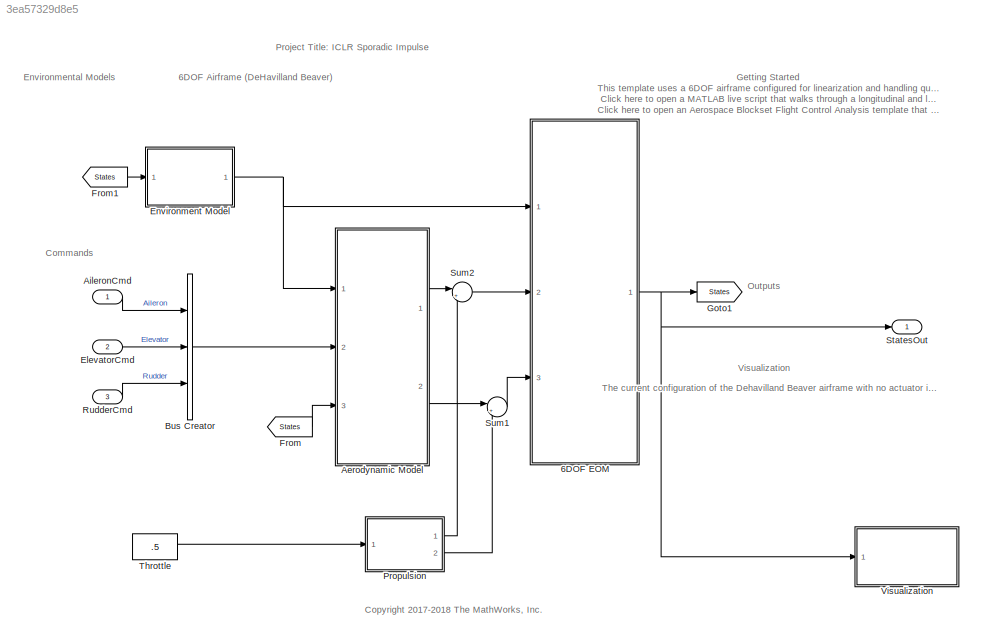
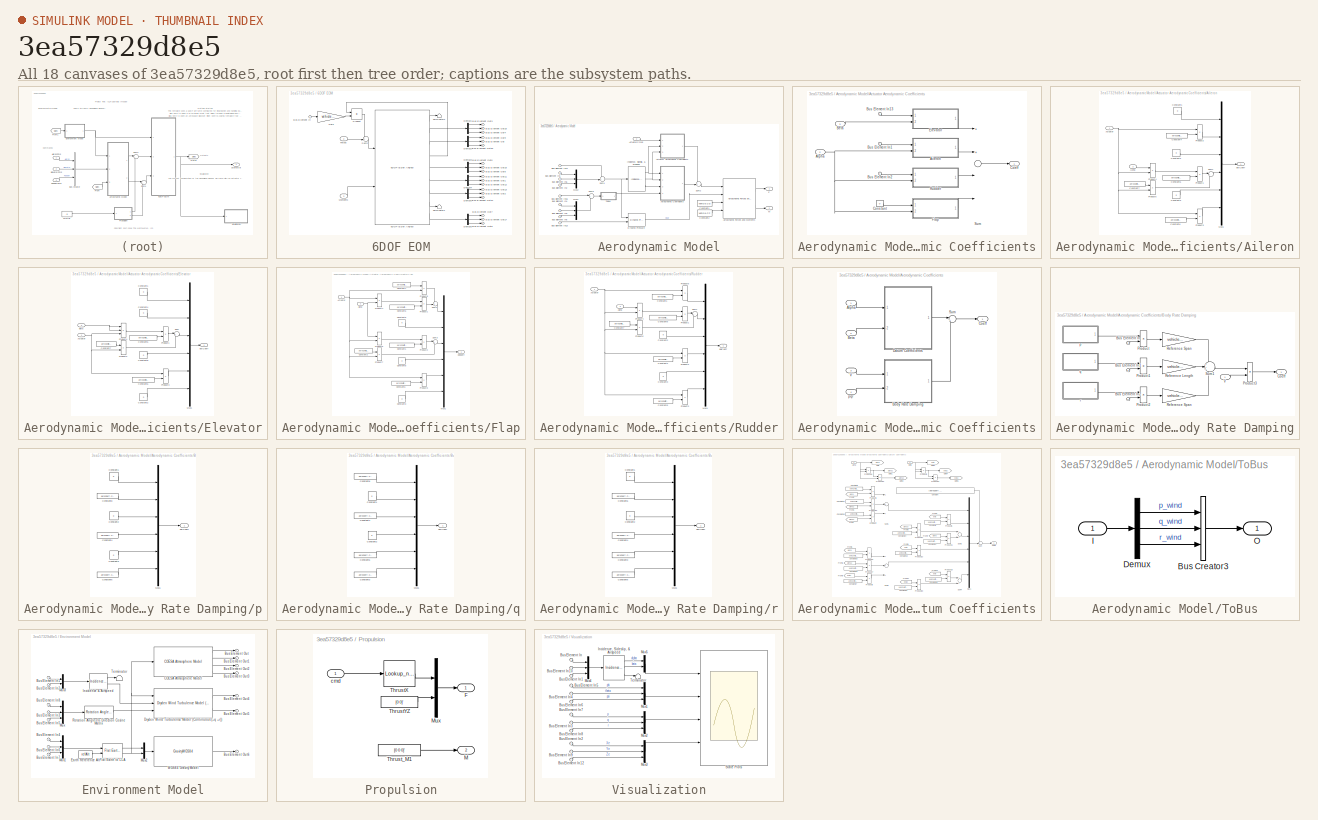
[diagram: thumbnail index - all 18 canvases of the model, root first then tree order]
MODEL slx_3ea57329d8e5
KIND model
CONFIG AbsTol = auto
CONFIG EnableMultiTasking = off
CONFIG FixedStep = 1/120
CONFIG MaxStep = auto
CONFIG MinStep = auto
CONFIG RelTol = 1e-5
CONFIG SampleTimeConstraint = Unconstrained
CONFIG Solver = ode3
CONFIG SolverName = ode3
CONFIG StartTime = 0.0
CONFIG StopTime = 60
WORKSPACE source: MATLAB code (in-file) + MAT-file member
WORKSPACE code: initialize6DOFSkyHogg;
WORKSPACE aeroCoeff: struct (value not decoded)
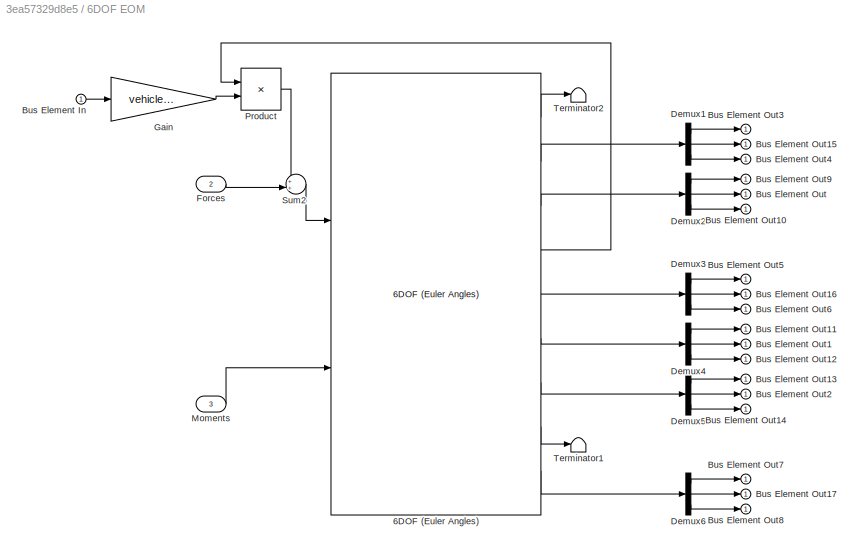
BLOCK [SubSystem] 6DOF EOM
  Ports = [3, 1]
  RequestExecContextInheritance = off
  VariantControl = eom3DOF
BLOCK [Reference] 6DOF EOM/6DOF (Euler Angles)  REF=shared6dof/6DOF (Euler Angles)
  Ports = [2, 9]
  SourceBlock = shared6dof/6DOF (Euler Angles)
  SourceProductBaseCode = AE
  SourceProductName = Aerospace Blockset
  SourceType = 6DOF EoM (Body Axis)
BLOCK [Inport] 6DOF EOM/Bus Element In
  IconDisplay = Port number
BLOCK [Outport] 6DOF EOM/Bus Element Out
  IconDisplay = Port number
BLOCK [Outport] 6DOF EOM/Bus Element Out1
  IconDisplay = Port number
BLOCK [Outport] 6DOF EOM/Bus Element Out10
  IconDisplay = Port number
BLOCK [Outport] 6DOF EOM/Bus Element Out11
  IconDisplay = Port number
BLOCK [Outport] 6DOF EOM/Bus Element Out12
  IconDisplay = Port number
BLOCK [Outport] 6DOF EOM/Bus Element Out13
  IconDisplay = Port number
BLOCK [Outport] 6DOF EOM/Bus Element Out14
  IconDisplay = Port number
BLOCK [Outport] 6DOF EOM/Bus Element Out15
  IconDisplay = Port number
BLOCK [Outport] 6DOF EOM/Bus Element Out16
  IconDisplay = Port number
BLOCK [Outport] 6DOF EOM/Bus Element Out17
  IconDisplay = Port number
BLOCK [Outport] 6DOF EOM/Bus Element Out2
  IconDisplay = Port number
BLOCK [Outport] 6DOF EOM/Bus Element Out3
  IconDisplay = Port number
BLOCK [Outport] 6DOF EOM/Bus Element Out4
  IconDisplay = Port number
BLOCK [Outport] 6DOF EOM/Bus Element Out5
  IconDisplay = Port number
BLOCK [Outport] 6DOF EOM/Bus Element Out6
  IconDisplay = Port number
BLOCK [Outport] 6DOF EOM/Bus Element Out7
  IconDisplay = Port number
BLOCK [Outport] 6DOF EOM/Bus Element Out8
  IconDisplay = Port number
BLOCK [Outport] 6DOF EOM/Bus Element Out9
  IconDisplay = Port number
BLOCK [Demux] 6DOF EOM/Demux1
  DisplayOption = bar
  Outputs = 3
  Ports = [1, 3]
BLOCK [Demux] 6DOF EOM/Demux2
  DisplayOption = bar
  Outputs = 3
  Ports = [1, 3]
BLOCK [Demux] 6DOF EOM/Demux3
  DisplayOption = bar
  Outputs = 3
  Ports = [1, 3]
BLOCK [Demux] 6DOF EOM/Demux4
  DisplayOption = bar
  Outputs = 3
  Ports = [1, 3]
BLOCK [Demux] 6DOF EOM/Demux5
  DisplayOption = bar
  Outputs = 3
  Ports = [1, 3]
BLOCK [Demux] 6DOF EOM/Demux6
  DisplayOption = bar
  Outputs = 3
  Ports = [1, 3]
BLOCK [Inport] 6DOF EOM/Forces
  IconDisplay = Port number
  Port = 2
BLOCK [Gain] 6DOF EOM/Gain
  Gain = vehicle.acMass
  OutDataTypeStr = Inherit: Inherit via internal rule
  ParamDataTypeStr = Inherit: Inherit via internal rule
  SaturateOnIntegerOverflow = off
BLOCK [Inport] 6DOF EOM/Moments
  IconDisplay = Port number
  Port = 3
BLOCK [Product] 6DOF EOM/Product
  InputSameDT = off
  Multiplication = Matrix(*)
  OutDataTypeStr = Inherit: Inherit via internal rule
  Ports = [2, 1]
  RndMeth = Floor
  SaturateOnIntegerOverflow = off
BLOCK [Sum] 6DOF EOM/Sum2
  IconShape = round
  Inputs = ++|
  Ports = [2, 1]
BLOCK [Terminator] 6DOF EOM/Terminator1
BLOCK [Terminator] 6DOF EOM/Terminator2
BLOCK [SubSystem] Aerodynamic Model
  Ports = [3, 2]
  RequestExecContextInheritance = off
  VariantControl = aeroCONST
BLOCK [SubSystem] Aerodynamic Model/Actuator Aerodynamic Coefficients
  Ports = [3, 1]
  RequestExecContextInheritance = off
BLOCK [SubSystem] Aerodynamic Model/Actuator Aerodynamic Coefficients/Aileron
  Ports = [2, 1]
  RequestExecContextInheritance = off
BLOCK [Inport] Aerodynamic Model/Actuator Aerodynamic Coefficients/Aileron/Actuator
  IconDisplay = Port number
BLOCK [Inport] Aerodynamic Model/Actuator Aerodynamic Coefficients/Aileron/Alpha
  IconDisplay = Port number
  Port = 2
BLOCK [Constant] Aerodynamic Model/Actuator Aerodynamic Coefficients/Aileron/Constant1
  Value = 0
BLOCK [Constant] Aerodynamic Model/Actuator Aerodynamic Coefficients/Aileron/Constant2
  Value = 0
BLOCK [Constant] Aerodynamic Model/Actuator Aerodynamic Coefficients/Aileron/Constant3
  Value = 0
BLOCK [Constant] Aerodynamic Model/Actuator Aerodynamic Coefficients/Aileron/Constant4
  Value = aeroCoeff.Cy_da
BLOCK [Constant] Aerodynamic Model/Actuator Aerodynamic Coefficients/Aileron/Constant5
  Value = aeroCoeff.Cl_da_alpha
BLOCK [Constant] Aerodynamic Model/Actuator Aerodynamic Coefficients/Aileron/Constant6
  Value = aeroCoeff.Cn_da
BLOCK [Constant] Aerodynamic Model/Actuator Aerodynamic Coefficients/Aileron/Constant7
  Value = aeroCoeff.Cl_da
BLOCK [Mux] Aerodynamic Model/Actuator Aerodynamic Coefficients/Aileron/Mux1
  Inputs = 6
  Ports = [6, 1]
BLOCK [Product] Aerodynamic Model/Actuator Aerodynamic Coefficients/Aileron/Product1
  Ports = [2, 1]
  RndMeth = Floor
BLOCK [Product] Aerodynamic Model/Actuator Aerodynamic Coefficients/Aileron/Product2
  Ports = [2, 1]
  RndMeth = Floor
BLOCK [Product] Aerodynamic Model/Actuator Aerodynamic Coefficients/Aileron/Product3
  Ports = [2, 1]
  RndMeth = Floor
BLOCK [Product] Aerodynamic Model/Actuator Aerodynamic Coefficients/Aileron/Product4
  Ports = [2, 1]
  RndMeth = Floor
BLOCK [Product] Aerodynamic Model/Actuator Aerodynamic Coefficients/Aileron/Product5
  Ports = [2, 1]
  RndMeth = Floor
BLOCK [Sum] Aerodynamic Model/Actuator Aerodynamic Coefficients/Aileron/Sum1
  IconShape = round
  InputSameDT = off
  Inputs = |++
  OutDataTypeStr = Inherit: Inherit via internal rule
  Ports = [2, 1]
  SaturateOnIntegerOverflow = off
BLOCK [Outport] Aerodynamic Model/Actuator Aerodynamic Coefficients/Aileron/delCoeff
  IconDisplay = Port number
BLOCK [Inport] Aerodynamic Model/Actuator Aerodynamic Coefficients/Alpha
  IconDisplay = Port number
  Port = 2
BLOCK [Inport] Aerodynamic Model/Actuator Aerodynamic Coefficients/Beta
  IconDisplay = Port number
  Port = 3
BLOCK [Inport] Aerodynamic Model/Actuator Aerodynamic Coefficients/Bus Element In1
  IconDisplay = Port number
BLOCK [Inport] Aerodynamic Model/Actuator Aerodynamic Coefficients/Bus Element In13
  IconDisplay = Port number
BLOCK [Inport] Aerodynamic Model/Actuator Aerodynamic Coefficients/Bus Element In2
  IconDisplay = Port number
BLOCK [Outport] Aerodynamic Model/Actuator Aerodynamic Coefficients/Coeff
  IconDisplay = Port number
  InitialOutput = 0
BLOCK [Constant] Aerodynamic Model/Actuator Aerodynamic Coefficients/Constant
  Value = 0
BLOCK [SubSystem] Aerodynamic Model/Actuator Aerodynamic Coefficients/Elevator
  Ports = [2, 1]
  RequestExecContextInheritance = off
BLOCK [Inport] Aerodynamic Model/Actuator Aerodynamic Coefficients/Elevator/Actuator
  IconDisplay = Port number
BLOCK [Inport] Aerodynamic Model/Actuator Aerodynamic Coefficients/Elevator/Beta
  IconDisplay = Port number
  Port = 2
BLOCK [Constant] Aerodynamic Model/Actuator Aerodynamic Coefficients/Elevator/Constant1
  Value = 0
BLOCK [Constant] Aerodynamic Model/Actuator Aerodynamic Coefficients/Elevator/Constant2
  Value = 0
BLOCK [Constant] Aerodynamic Model/Actuator Aerodynamic Coefficients/Elevator/Constant4
  Value = 0
BLOCK [Constant] Aerodynamic Model/Actuator Aerodynamic Coefficients/Elevator/Constant5
  Value = aeroCoeff.Cz_de_beta
BLOCK [Constant] Aerodynamic Model/Actuator Aerodynamic Coefficients/Elevator/Constant6
  Value = aeroCoeff.Cm_de
BLOCK [Constant] Aerodynamic Model/Actuator Aerodynamic Coefficients/Elevator/Constant7
  Value = aeroCoeff.Cz_de
BLOCK [Constant] Aerodynamic Model/Actuator Aerodynamic Coefficients/Elevator/Constant8
  Value = 0
BLOCK [Mux] Aerodynamic Model/Actuator Aerodynamic Coefficients/Elevator/Mux1
  Inputs = 6
  Ports = [6, 1]
BLOCK [Product] Aerodynamic Model/Actuator Aerodynamic Coefficients/Elevator/Product1
  Ports = [2, 1]
  RndMeth = Floor
BLOCK [Product] Aerodynamic Model/Actuator Aerodynamic Coefficients/Elevator/Product2
  Ports = [2, 1]
  RndMeth = Floor
BLOCK [Product] Aerodynamic Model/Actuator Aerodynamic Coefficients/Elevator/Product3
  Ports = [2, 1]
  RndMeth = Floor
BLOCK [Product] Aerodynamic Model/Actuator Aerodynamic Coefficients/Elevator/Product4
  Inputs = 3
  Ports = [3, 1]
  RndMeth = Floor
BLOCK [Sum] Aerodynamic Model/Actuator Aerodynamic Coefficients/Elevator/Sum
  IconShape = round
  InputSameDT = off
  Inputs = |++
  OutDataTypeStr = Inherit: Inherit via internal rule
  Ports = [2, 1]
  SaturateOnIntegerOverflow = off
BLOCK [Outport] Aerodynamic Model/Actuator Aerodynamic Coefficients/Elevator/delCoeff
  IconDisplay = Port number
BLOCK [SubSystem] Aerodynamic Model/Actuator Aerodynamic Coefficients/Flap
  Ports = [2, 1]
  RequestExecContextInheritance = off
BLOCK [Inport] Aerodynamic Model/Actuator Aerodynamic Coefficients/Flap/Actuator
  IconDisplay = Port number
BLOCK [Inport] Aerodynamic Model/Actuator Aerodynamic Coefficients/Flap/Alpha
  IconDisplay = Port number
  Port = 2
BLOCK [Constant] Aerodynamic Model/Actuator Aerodynamic Coefficients/Flap/Constant1
  Value = aeroCoeff.Cz_df_alpha
BLOCK [Constant] Aerodynamic Model/Actuator Aerodynamic Coefficients/Flap/Constant2
  Value = aeroCoeff.Cz_df
BLOCK [Constant] Aerodynamic Model/Actuator Aerodynamic Coefficients/Flap/Constant3
  Value = 0
BLOCK [Constant] Aerodynamic Model/Actuator Aerodynamic Coefficients/Flap/Constant5
  Value = aeroCoeff.Cx_df_alpha
BLOCK [Constant] Aerodynamic Model/Actuator Aerodynamic Coefficients/Flap/Constant6
  Value = aeroCoeff.Cm_df
BLOCK [Constant] Aerodynamic Model/Actuator Aerodynamic Coefficients/Flap/Constant7
  Value = aeroCoeff.Cx_df
BLOCK [Constant] Aerodynamic Model/Actuator Aerodynamic Coefficients/Flap/Constant8
  Value = 0
BLOCK [Constant] Aerodynamic Model/Actuator Aerodynamic Coefficients/Flap/Constant9
  Value = 0
BLOCK [Mux] Aerodynamic Model/Actuator Aerodynamic Coefficients/Flap/Mux1
  Inputs = 6
  Ports = [6, 1]
BLOCK [Product] Aerodynamic Model/Actuator Aerodynamic Coefficients/Flap/Product1
  Ports = [2, 1]
  RndMeth = Floor
BLOCK [Product] Aerodynamic Model/Actuator Aerodynamic Coefficients/Flap/Product2
  Ports = [2, 1]
  RndMeth = Floor
BLOCK [Product] Aerodynamic Model/Actuator Aerodynamic Coefficients/Flap/Product3
  Ports = [2, 1]
  RndMeth = Floor
BLOCK [Product] Aerodynamic Model/Actuator Aerodynamic Coefficients/Flap/Product4
  Ports = [2, 1]
  RndMeth = Floor
BLOCK [Product] Aerodynamic Model/Actuator Aerodynamic Coefficients/Flap/Product5
  Ports = [2, 1]
  RndMeth = Floor
BLOCK [Product] Aerodynamic Model/Actuator Aerodynamic Coefficients/Flap/Product6
  Ports = [2, 1]
  RndMeth = Floor
BLOCK [Product] Aerodynamic Model/Actuator Aerodynamic Coefficients/Flap/Product7
  Ports = [2, 1]
  RndMeth = Floor
BLOCK [Sum] Aerodynamic Model/Actuator Aerodynamic Coefficients/Flap/Sum2
  IconShape = round
  InputSameDT = off
  Inputs = ++|
  OutDataTypeStr = Inherit: Inherit via internal rule
  Ports = [2, 1]
  SaturateOnIntegerOverflow = off
BLOCK [Sum] Aerodynamic Model/Actuator Aerodynamic Coefficients/Flap/Sum3
  IconShape = round
  InputSameDT = off
  Inputs = |++
  OutDataTypeStr = Inherit: Inherit via internal rule
  Ports = [2, 1]
  SaturateOnIntegerOverflow = off
BLOCK [Outport] Aerodynamic Model/Actuator Aerodynamic Coefficients/Flap/delCoeff
  IconDisplay = Port number
BLOCK [SubSystem] Aerodynamic Model/Actuator Aerodynamic Coefficients/Rudder
  Ports = [2, 1]
  RequestExecContextInheritance = off
BLOCK [Inport] Aerodynamic Model/Actuator Aerodynamic Coefficients/Rudder/Actuator
  IconDisplay = Port number
BLOCK [Inport] Aerodynamic Model/Actuator Aerodynamic Coefficients/Rudder/Alpha
  IconDisplay = Port number
  Port = 2
BLOCK [Constant] Aerodynamic Model/Actuator Aerodynamic Coefficients/Rudder/Constant1
  Value = aeroCoeff.Cx_dr
BLOCK [Constant] Aerodynamic Model/Actuator Aerodynamic Coefficients/Rudder/Constant2
  Value = 0
BLOCK [Constant] Aerodynamic Model/Actuator Aerodynamic Coefficients/Rudder/Constant3
  Value = 0
BLOCK [Constant] Aerodynamic Model/Actuator Aerodynamic Coefficients/Rudder/Constant4
  Value = aeroCoeff.Cl_dr
BLOCK [Constant] Aerodynamic Model/Actuator Aerodynamic Coefficients/Rudder/Constant5
  Value = aeroCoeff.Cy_dr_alpha
BLOCK [Constant] Aerodynamic Model/Actuator Aerodynamic Coefficients/Rudder/Constant6
  Value = aeroCoeff.Cn_dr
BLOCK [Constant] Aerodynamic Model/Actuator Aerodynamic Coefficients/Rudder/Constant7
  Value = aeroCoeff.Cy_dr
BLOCK [Mux] Aerodynamic Model/Actuator Aerodynamic Coefficients/Rudder/Mux1
  Inputs = 6
  Ports = [6, 1]
BLOCK [Product] Aerodynamic Model/Actuator Aerodynamic Coefficients/Rudder/Product1
  Ports = [2, 1]
  RndMeth = Floor
BLOCK [Product] Aerodynamic Model/Actuator Aerodynamic Coefficients/Rudder/Product2
  Ports = [2, 1]
  RndMeth = Floor
BLOCK [Product] Aerodynamic Model/Actuator Aerodynamic Coefficients/Rudder/Product3
  Ports = [2, 1]
  RndMeth = Floor
BLOCK [Product] Aerodynamic Model/Actuator Aerodynamic Coefficients/Rudder/Product4
  Ports = [2, 1]
  RndMeth = Floor
BLOCK [Product] Aerodynamic Model/Actuator Aerodynamic Coefficients/Rudder/Product5
  Ports = [2, 1]
  RndMeth = Floor
BLOCK [Product] Aerodynamic Model/Actuator Aerodynamic Coefficients/Rudder/Product6
  Ports = [2, 1]
  RndMeth = Floor
BLOCK [Sum] Aerodynamic Model/Actuator Aerodynamic Coefficients/Rudder/Sum1
  IconShape = round
  InputSameDT = off
  Inputs = |++
  OutDataTypeStr = Inherit: Inherit via internal rule
  Ports = [2, 1]
  SaturateOnIntegerOverflow = off
BLOCK [Outport] Aerodynamic Model/Actuator Aerodynamic Coefficients/Rudder/delCoeff
  IconDisplay = Port number
BLOCK [Sum] Aerodynamic Model/Actuator Aerodynamic Coefficients/Sum
  Inputs = 4
  Ports = [4, 1]
BLOCK [Inport] Aerodynamic Model/ActuatorCmds
  IconDisplay = Port number
  Port = 2
BLOCK [SubSystem] Aerodynamic Model/Aerodynamic Coefficients
  Ports = [4, 1]
  RequestExecContextInheritance = off
BLOCK [Inport] Aerodynamic Model/Aerodynamic Coefficients/Alpha
  IconDisplay = Port number
BLOCK [Inport] Aerodynamic Model/Aerodynamic Coefficients/Beta
  IconDisplay = Port number
  Port = 2
BLOCK [SubSystem] Aerodynamic Model/Aerodynamic Coefficients/Body Rate Damping
  Ports = [2, 1]
  RequestExecContextInheritance = off
BLOCK [Inport] Aerodynamic Model/Aerodynamic Coefficients/Body Rate Damping/Bus Element In
  IconDisplay = Port number
  Port = 2
BLOCK [Inport] Aerodynamic Model/Aerodynamic Coefficients/Body Rate Damping/Bus Element In1
  IconDisplay = Port number
  Port = 2
BLOCK [Inport] Aerodynamic Model/Aerodynamic Coefficients/Body Rate Damping/Bus Element In2
  IconDisplay = Port number
  Port = 2
BLOCK [Outport] Aerodynamic Model/Aerodynamic Coefficients/Body Rate Damping/Coeff
  IconDisplay = Port number
  InitialOutput = 0
BLOCK [Product] Aerodynamic Model/Aerodynamic Coefficients/Body Rate Damping/Product
  Ports = [2, 1]
  RndMeth = Floor
BLOCK [Product] Aerodynamic Model/Aerodynamic Coefficients/Body Rate Damping/Product1
  Ports = [2, 1]
  RndMeth = Floor
BLOCK [Product] Aerodynamic Model/Aerodynamic Coefficients/Body Rate Damping/Product2
  Ports = [2, 1]
  RndMeth = Floor
BLOCK [Product] Aerodynamic Model/Aerodynamic Coefficients/Body Rate Damping/Product3
  Inputs = */
  Ports = [2, 1]
  RndMeth = Floor
BLOCK [Gain] Aerodynamic Model/Aerodynamic Coefficients/Body Rate Damping/Reference Length
  Gain = vehicle.cbar
BLOCK [Gain] Aerodynamic Model/Aerodynamic Coefficients/Body Rate Damping/Reference Span
  Gain = vehicle.bref/2
BLOCK [Gain] Aerodynamic Model/Aerodynamic Coefficients/Body Rate Damping/Reference Span 
  Gain = vehicle.bref/2
BLOCK [Sum] Aerodynamic Model/Aerodynamic Coefficients/Body Rate Damping/Sum1
  IconShape = round
  Inputs = +++
  Ports = [3, 1]
BLOCK [Inport] Aerodynamic Model/Aerodynamic Coefficients/Body Rate Damping/V
  IconDisplay = Port number
  Unit = m/s
BLOCK [SubSystem] Aerodynamic Model/Aerodynamic Coefficients/Body Rate Damping/p
  Ports = [0, 1]
  RequestExecContextInheritance = off
BLOCK [Constant] Aerodynamic Model/Aerodynamic Coefficients/Body Rate Damping/p/Constant1
  Value = 0
BLOCK [Constant] Aerodynamic Model/Aerodynamic Coefficients/Body Rate Damping/p/Constant2
  Value = 0
BLOCK [Constant] Aerodynamic Model/Aerodynamic Coefficients/Body Rate Damping/p/Constant3
  Value = 0
BLOCK [Constant] Aerodynamic Model/Aerodynamic Coefficients/Body Rate Damping/p/Constant4
  Value = aeroCoeff.Cl_p
BLOCK [Constant] Aerodynamic Model/Aerodynamic Coefficients/Body Rate Damping/p/Constant5
  Value = aeroCoeff.Cn_p
BLOCK [Constant] Aerodynamic Model/Aerodynamic Coefficients/Body Rate Damping/p/Constant8
  Value = aeroCoeff.Cy_p
BLOCK [Mux] Aerodynamic Model/Aerodynamic Coefficients/Body Rate Damping/p/Mux1
  Inputs = 6
  Ports = [6, 1]
BLOCK [Outport] Aerodynamic Model/Aerodynamic Coefficients/Body Rate Damping/p/delCoeff
  IconDisplay = Port number
BLOCK [SubSystem] Aerodynamic Model/Aerodynamic Coefficients/Body Rate Damping/q
  Ports = [0, 1]
  RequestExecContextInheritance = off
BLOCK [Constant] Aerodynamic Model/Aerodynamic Coefficients/Body Rate Damping/q/Constant1
  Value = 0
BLOCK [Constant] Aerodynamic Model/Aerodynamic Coefficients/Body Rate Damping/q/Constant2
  Value = 0
BLOCK [Constant] Aerodynamic Model/Aerodynamic Coefficients/Body Rate Damping/q/Constant3
  Value = aeroCoeff.Cn_q
BLOCK [Constant] Aerodynamic Model/Aerodynamic Coefficients/Body Rate Damping/q/Constant4
  Value = aeroCoeff.Cz_q
BLOCK [Constant] Aerodynamic Model/Aerodynamic Coefficients/Body Rate Damping/q/Constant5
  Value = aeroCoeff.Cm_q
BLOCK [Constant] Aerodynamic Model/Aerodynamic Coefficients/Body Rate Damping/q/Constant8
  Value = aeroCoeff.Cx_q
BLOCK [Mux] Aerodynamic Model/Aerodynamic Coefficients/Body Rate Damping/q/Mux1
  Inputs = 6
  Ports = [6, 1]
BLOCK [Outport] Aerodynamic Model/Aerodynamic Coefficients/Body Rate Damping/q/delCoeff
  IconDisplay = Port number
BLOCK [SubSystem] Aerodynamic Model/Aerodynamic Coefficients/Body Rate Damping/r
  Ports = [0, 1]
  RequestExecContextInheritance = off
BLOCK [Constant] Aerodynamic Model/Aerodynamic Coefficients/Body Rate Damping/r/Constant1
  Value = 0
BLOCK [Constant] Aerodynamic Model/Aerodynamic Coefficients/Body Rate Damping/r/Constant2
  Value = 0
BLOCK [Constant] Aerodynamic Model/Aerodynamic Coefficients/Body Rate Damping/r/Constant3
  Value = aeroCoeff.Cm_r
BLOCK [Constant] Aerodynamic Model/Aerodynamic Coefficients/Body Rate Damping/r/Constant4
  Value = aeroCoeff.Cl_r
BLOCK [Constant] Aerodynamic Model/Aerodynamic Coefficients/Body Rate Damping/r/Constant5
  Value = aeroCoeff.Cn_r
BLOCK [Constant] Aerodynamic Model/Aerodynamic Coefficients/Body Rate Damping/r/Constant6
  Value = aeroCoeff.Cy_r
BLOCK [Mux] Aerodynamic Model/Aerodynamic Coefficients/Body Rate Damping/r/Mux1
  Inputs = 6
  Ports = [6, 1]
BLOCK [Outport] Aerodynamic Model/Aerodynamic Coefficients/Body Rate Damping/r/delCoeff
  IconDisplay = Port number
BLOCK [Outport] Aerodynamic Model/Aerodynamic Coefficients/Coeff
  IconDisplay = Port number
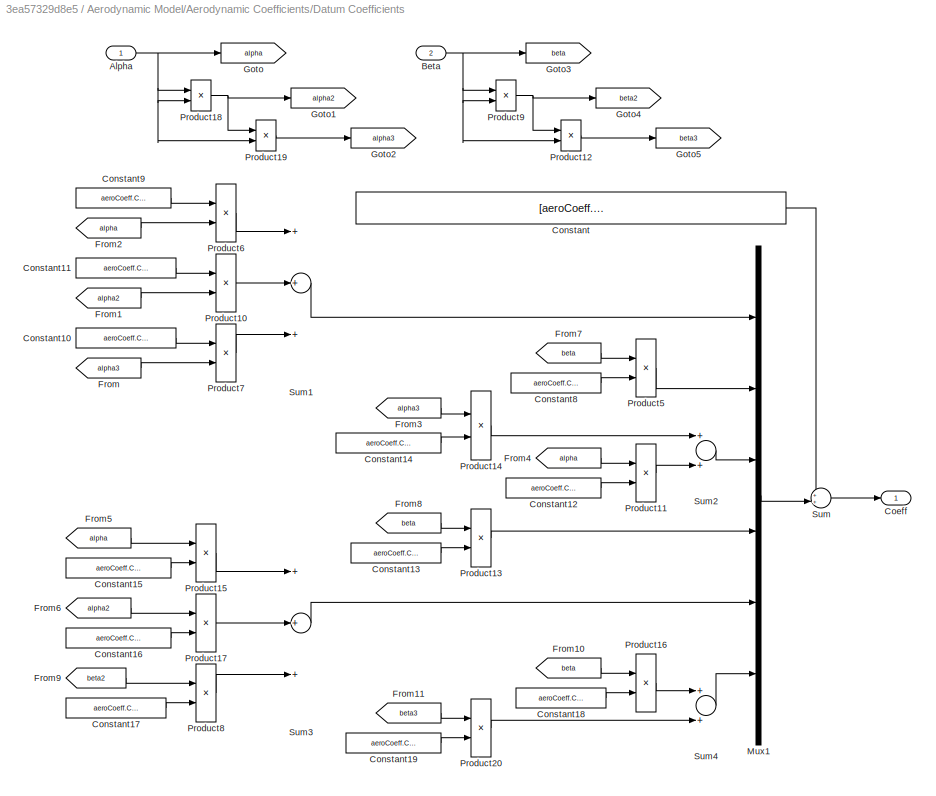
BLOCK [SubSystem] Aerodynamic Model/Aerodynamic Coefficients/Datum Coefficients
  Ports = [2, 1]
  RequestExecContextInheritance = off
BLOCK [Inport] Aerodynamic Model/Aerodynamic Coefficients/Datum Coefficients/Alpha
  IconDisplay = Port number
BLOCK [Inport] Aerodynamic Model/Aerodynamic Coefficients/Datum Coefficients/Beta
  IconDisplay = Port number
  Port = 2
BLOCK [Outport] Aerodynamic Model/Aerodynamic Coefficients/Datum Coefficients/Coeff
  IconDisplay = Port number
  InitialOutput = 0
BLOCK [Constant] Aerodynamic Model/Aerodynamic Coefficients/Datum Coefficients/Constant
  Value = [aeroCoeff.Cx0; aeroCoeff.Cy0; aeroCoeff.Cz0; aeroCoeff.Cl0; aeroCoeff.Cm0; aeroCoeff.Cn0]
BLOCK [Constant] Aerodynamic Model/Aerodynamic Coefficients/Datum Coefficients/Constant10
  Value = aeroCoeff.Cx_alpha3
BLOCK [Constant] Aerodynamic Model/Aerodynamic Coefficients/Datum Coefficients/Constant11
  Value = aeroCoeff.Cx_alpha2
BLOCK [Constant] Aerodynamic Model/Aerodynamic Coefficients/Datum Coefficients/Constant12
  Value = aeroCoeff.Cz_alpha
BLOCK [Constant] Aerodynamic Model/Aerodynamic Coefficients/Datum Coefficients/Constant13
  Value = aeroCoeff.Cl_beta
BLOCK [Constant] Aerodynamic Model/Aerodynamic Coefficients/Datum Coefficients/Constant14
  Value = aeroCoeff.Cz_alpha3
BLOCK [Constant] Aerodynamic Model/Aerodynamic Coefficients/Datum Coefficients/Constant15
  Value = aeroCoeff.Cm_alpha
BLOCK [Constant] Aerodynamic Model/Aerodynamic Coefficients/Datum Coefficients/Constant16
  Value = aeroCoeff.Cm_alpha2
BLOCK [Constant] Aerodynamic Model/Aerodynamic Coefficients/Datum Coefficients/Constant17
  Value = aeroCoeff.Cm_beta2
BLOCK [Constant] Aerodynamic Model/Aerodynamic Coefficients/Datum Coefficients/Constant18
  Value = aeroCoeff.Cn_beta
BLOCK [Constant] Aerodynamic Model/Aerodynamic Coefficients/Datum Coefficients/Constant19
  Value = aeroCoeff.Cn_beta3
BLOCK [Constant] Aerodynamic Model/Aerodynamic Coefficients/Datum Coefficients/Constant8
  Value = aeroCoeff.Cy_beta
BLOCK [Constant] Aerodynamic Model/Aerodynamic Coefficients/Datum Coefficients/Constant9
  Value = aeroCoeff.Cx_alpha
BLOCK [From] Aerodynamic Model/Aerodynamic Coefficients/Datum Coefficients/From
  GotoTag = alpha3
BLOCK [From] Aerodynamic Model/Aerodynamic Coefficients/Datum Coefficients/From1
  GotoTag = alpha2
BLOCK [From] Aerodynamic Model/Aerodynamic Coefficients/Datum Coefficients/From10
  GotoTag = beta
BLOCK [From] Aerodynamic Model/Aerodynamic Coefficients/Datum Coefficients/From11
  GotoTag = beta3
BLOCK [From] Aerodynamic Model/Aerodynamic Coefficients/Datum Coefficients/From2
  GotoTag = alpha
BLOCK [From] Aerodynamic Model/Aerodynamic Coefficients/Datum Coefficients/From3
  GotoTag = alpha3
BLOCK [From] Aerodynamic Model/Aerodynamic Coefficients/Datum Coefficients/From4
  GotoTag = alpha
BLOCK [From] Aerodynamic Model/Aerodynamic Coefficients/Datum Coefficients/From5
  GotoTag = alpha
BLOCK [From] Aerodynamic Model/Aerodynamic Coefficients/Datum Coefficients/From6
  GotoTag = alpha2
BLOCK [From] Aerodynamic Model/Aerodynamic Coefficients/Datum Coefficients/From7
  GotoTag = beta
BLOCK [From] Aerodynamic Model/Aerodynamic Coefficients/Datum Coefficients/From8
  GotoTag = beta
BLOCK [From] Aerodynamic Model/Aerodynamic Coefficients/Datum Coefficients/From9
  GotoTag = beta2
BLOCK [Goto] Aerodynamic Model/Aerodynamic Coefficients/Datum Coefficients/Goto
  GotoTag = alpha
BLOCK [Goto] Aerodynamic Model/Aerodynamic Coefficients/Datum Coefficients/Goto1
  GotoTag = alpha2
BLOCK [Goto] Aerodynamic Model/Aerodynamic Coefficients/Datum Coefficients/Goto2
  GotoTag = alpha3
BLOCK [Goto] Aerodynamic Model/Aerodynamic Coefficients/Datum Coefficients/Goto3
  GotoTag = beta
BLOCK [Goto] Aerodynamic Model/Aerodynamic Coefficients/Datum Coefficients/Goto4
  GotoTag = beta2
BLOCK [Goto] Aerodynamic Model/Aerodynamic Coefficients/Datum Coefficients/Goto5
  GotoTag = beta3
BLOCK [Mux] Aerodynamic Model/Aerodynamic Coefficients/Datum Coefficients/Mux1
  Inputs = 6
  Ports = [6, 1]
BLOCK [Product] Aerodynamic Model/Aerodynamic Coefficients/Datum Coefficients/Product10
  Ports = [2, 1]
  RndMeth = Floor
BLOCK [Product] Aerodynamic Model/Aerodynamic Coefficients/Datum Coefficients/Product11
  Ports = [2, 1]
  RndMeth = Floor
BLOCK [Product] Aerodynamic Model/Aerodynamic Coefficients/Datum Coefficients/Product12
  Ports = [2, 1]
  RndMeth = Floor
BLOCK [Product] Aerodynamic Model/Aerodynamic Coefficients/Datum Coefficients/Product13
  Ports = [2, 1]
  RndMeth = Floor
BLOCK [Product] Aerodynamic Model/Aerodynamic Coefficients/Datum Coefficients/Product14
  Ports = [2, 1]
  RndMeth = Floor
BLOCK [Product] Aerodynamic Model/Aerodynamic Coefficients/Datum Coefficients/Product15
  Ports = [2, 1]
  RndMeth = Floor
BLOCK [Product] Aerodynamic Model/Aerodynamic Coefficients/Datum Coefficients/Product16
  Ports = [2, 1]
  RndMeth = Floor
BLOCK [Product] Aerodynamic Model/Aerodynamic Coefficients/Datum Coefficients/Product17
  Ports = [2, 1]
  RndMeth = Floor
BLOCK [Product] Aerodynamic Model/Aerodynamic Coefficients/Datum Coefficients/Product18
  Ports = [2, 1]
  RndMeth = Floor
BLOCK [Product] Aerodynamic Model/Aerodynamic Coefficients/Datum Coefficients/Product19
  Ports = [2, 1]
  RndMeth = Floor
BLOCK [Product] Aerodynamic Model/Aerodynamic Coefficients/Datum Coefficients/Product20
  Ports = [2, 1]
  RndMeth = Floor
BLOCK [Product] Aerodynamic Model/Aerodynamic Coefficients/Datum Coefficients/Product5
  Ports = [2, 1]
  RndMeth = Floor
BLOCK [Product] Aerodynamic Model/Aerodynamic Coefficients/Datum Coefficients/Product6
  Ports = [2, 1]
  RndMeth = Floor
BLOCK [Product] Aerodynamic Model/Aerodynamic Coefficients/Datum Coefficients/Product7
  Ports = [2, 1]
  RndMeth = Floor
BLOCK [Product] Aerodynamic Model/Aerodynamic Coefficients/Datum Coefficients/Product8
  Ports = [2, 1]
  RndMeth = Floor
BLOCK [Product] Aerodynamic Model/Aerodynamic Coefficients/Datum Coefficients/Product9
  Ports = [2, 1]
  RndMeth = Floor
BLOCK [Sum] Aerodynamic Model/Aerodynamic Coefficients/Datum Coefficients/Sum
  IconShape = round
  InputSameDT = off
  Inputs = ++|
  OutDataTypeStr = Inherit: Inherit via internal rule
  Ports = [2, 1]
  SaturateOnIntegerOverflow = off
BLOCK [Sum] Aerodynamic Model/Aerodynamic Coefficients/Datum Coefficients/Sum1
  InputSameDT = off
  Inputs = +++
  OutDataTypeStr = Inherit: Inherit via internal rule
  Ports = [3, 1]
BLOCK [Sum] Aerodynamic Model/Aerodynamic Coefficients/Datum Coefficients/Sum2
  InputSameDT = off
  Inputs = 2
  OutDataTypeStr = Inherit: Inherit via internal rule
  Ports = [2, 1]
BLOCK [Sum] Aerodynamic Model/Aerodynamic Coefficients/Datum Coefficients/Sum3
  InputSameDT = off
  Inputs = +++
  OutDataTypeStr = Inherit: Inherit via internal rule
  Ports = [3, 1]
BLOCK [Sum] Aerodynamic Model/Aerodynamic Coefficients/Datum Coefficients/Sum4
  InputSameDT = off
  Inputs = 2
  OutDataTypeStr = Inherit: Inherit via internal rule
  Ports = [2, 1]
BLOCK [Sum] Aerodynamic Model/Aerodynamic Coefficients/Sum
  IconShape = round
  InputSameDT = off
  Inputs = |++
  OutDataTypeStr = Inherit: Inherit via internal rule
  Ports = [2, 1]
  SaturateOnIntegerOverflow = off
BLOCK [Inport] Aerodynamic Model/Aerodynamic Coefficients/V
  IconDisplay = Port number
  Port = 3
BLOCK [Inport] Aerodynamic Model/Aerodynamic Coefficients/pqr
  IconDisplay = Port number
  Port = 4
  Unit = m/s
BLOCK [Reference] Aerodynamic Model/Aerodynamic Forces and Moments  REF=aerolibadyn/Aerodynamic
Forces and Moments 
  Ports = [4, 2]
  SourceBlock = aerolibadyn/Aerodynamic\nForces and Moments
  SourceProductBaseCode = AE
  SourceProductName = Aerospace Blockset
  SourceType = Aerodynamic Forces and Moments
BLOCK [Inport] Aerodynamic Model/Bus Element In1
  IconDisplay = Port number
  Port = 3
BLOCK [Inport] Aerodynamic Model/Bus Element In13
  IconDisplay = Port number
BLOCK [Inport] Aerodynamic Model/Bus Element In14
  IconDisplay = Port number
BLOCK [Inport] Aerodynamic Model/Bus Element In15
  IconDisplay = Port number
BLOCK [Inport] Aerodynamic Model/Bus Element In2
  IconDisplay = Port number
  Port = 3
BLOCK [Inport] Aerodynamic Model/Bus Element In3
  IconDisplay = Port number
  Port = 3
BLOCK [Inport] Aerodynamic Model/Bus Element In4
  IconDisplay = Port number
  Port = 3
BLOCK [Inport] Aerodynamic Model/Bus Element In5
  IconDisplay = Port number
  Port = 3
BLOCK [Inport] Aerodynamic Model/Bus Element In6
  IconDisplay = Port number
  Port = 3
BLOCK [Constant] Aerodynamic Model/Constant1
  Value = vehicle.CG
BLOCK [Constant] Aerodynamic Model/Constant2
  Value = vehicle.CP
BLOCK [Reference] Aerodynamic Model/Dynamic Pressure  REF=aerolibasang/Dynamic Pressure
  Ports = [2, 1]
  SourceBlock = aerolibasang/Dynamic Pressure
  SourceProductBaseCode = AE
  SourceProductName = Aerospace Blockset
  SourceType = Dynamic Pressure
BLOCK [Outport] Aerodynamic Model/F
  IconDisplay = Port number
  Unit = N
BLOCK [Reference] Aerodynamic Model/Incidence, Sideslip, & Airspeed  REF=aerolibasang/Incidence, Sideslip,
& Airspeed
  Ports = [1, 3]
  SourceBlock = aerolibasang/Incidence, Sideslip,\n& Airspeed
  SourceProductBaseCode = AE
  SourceProductName = Aerospace Blockset
  SourceType = Incidence,Sideslip,&Airspeed
BLOCK [Outport] Aerodynamic Model/M
  IconDisplay = Port number
  Port = 2
  Unit = N*m
BLOCK [Mux] Aerodynamic Model/Mux1
  DisplayOption = bar
  Inputs = 3
  Ports = [3, 1]
BLOCK [Mux] Aerodynamic Model/Mux2
  DisplayOption = bar
  Inputs = 3
  Ports = [3, 1]
BLOCK [Sum] Aerodynamic Model/Sum1
  IconShape = round
  Inputs = -+|
  Ports = [2, 1]
BLOCK [Sum] Aerodynamic Model/Sum2
  IconShape = round
  InputSameDT = off
  Inputs = ++|
  OutDataTypeStr = Inherit: Inherit via internal rule
  Ports = [2, 1]
  SaturateOnIntegerOverflow = off
BLOCK [Sum] Aerodynamic Model/Sum3
  IconShape = round
  Inputs = |++
  Ports = [2, 1]
BLOCK [SubSystem] Aerodynamic Model/ToBus
  Ports = [1, 1]
  RequestExecContextInheritance = off
BLOCK [BusCreator] Aerodynamic Model/ToBus/Bus Creator3
  DisplayOption = bar
  InheritFromInputs = on
  Inputs = 3
  Ports = [3, 1]
BLOCK [Demux] Aerodynamic Model/ToBus/Demux
  DisplayOption = bar
  Outputs = 3
  Ports = [1, 3]
BLOCK [Inport] Aerodynamic Model/ToBus/I
  IconDisplay = Port number
BLOCK [Outport] Aerodynamic Model/ToBus/O
  IconDisplay = Port number
BLOCK [Inport] AileronCmd
  IconDisplay = Port number
BLOCK [BusCreator] Bus Creator
  DisplayOption = bar
  InheritFromInputs = on
  Inputs = 3
  Ports = [3, 1]
BLOCK [Inport] ElevatorCmd
  IconDisplay = Port number
  Port = 2
BLOCK [SubSystem] Environment Model
  Ports = [1, 1]
  RequestExecContextInheritance = off
BLOCK [Inport] Environment Model/Bus Element In1
  IconDisplay = Port number
BLOCK [Inport] Environment Model/Bus Element In2
  IconDisplay = Port number
BLOCK [Inport] Environment Model/Bus Element In3
  IconDisplay = Port number
BLOCK [Inport] Environment Model/Bus Element In4
  IconDisplay = Port number
BLOCK [Inport] Environment Model/Bus Element In5
  IconDisplay = Port number
BLOCK [Inport] Environment Model/Bus Element In6
  IconDisplay = Port number
BLOCK [Inport] Environment Model/Bus Element In7
  IconDisplay = Port number
BLOCK [Inport] Environment Model/Bus Element In8
  IconDisplay = Port number
BLOCK [Outport] Environment Model/Bus Element Out
  IconDisplay = Port number
BLOCK [Outport] Environment Model/Bus Element Out1
  IconDisplay = Port number
BLOCK [Outport] Environment Model/Bus Element Out2
  IconDisplay = Port number
BLOCK [Outport] Environment Model/Bus Element Out3
  IconDisplay = Port number
BLOCK [Outport] Environment Model/Bus Element Out4
  IconDisplay = Port number
BLOCK [Outport] Environment Model/Bus Element Out5
  IconDisplay = Port number
BLOCK [Outport] Environment Model/Bus Element Out6
  IconDisplay = Port number
BLOCK [Reference] Environment Model/COESA Atmosphere Model  REF=aerolibatmos2/COESA Atmosphere Model
  Ports = [1, 4]
  SourceBlock = aerolibatmos2/COESA Atmosphere Model
  SourceProductBaseCode = AE
  SourceProductName = Aerospace Blockset
  SourceType = Atmosphere Model
BLOCK [Reference] Environment Model/Dryden Wind Turbulence Model (Continuous (+q +r))  REF=aerolibwind2/Dryden Wind Turbulence Model 
(Continuous (+q -r))
  Ports = [3, 2]
  SourceBlock = aerolibwind2/Dryden Wind Turbulence Model \n(Continuous (+q -r))
  SourceProductBaseCode = AE
  SourceProductName = Aerospace Blockset
  SourceType = Wind Turbulence Model
BLOCK [Constant] Environment Model/Earth Reference Alt
  Value = refAlt
BLOCK [Reference] Environment Model/Flat Earth to LLA  REF=aerolibtransform2/Flat Earth to LLA
  Ports = [2, 2]
  SourceBlock = aerolibtransform2/Flat Earth to LLA
  SourceProductBaseCode = AE
  SourceProductName = Aerospace Blockset
  SourceType = Flat Earth to LLA
BLOCK [Reference] Environment Model/Incidence & Airspeed  REF=aerolibasang/Incidence 
& Airspeed
  Ports = [1, 2]
  SourceBlock = aerolibasang/Incidence \n& Airspeed
  SourceProductBaseCode = AE
  SourceProductName = Aerospace Blockset
  SourceType = Incidence&Airspeed
BLOCK [Mux] Environment Model/Mux
  DisplayOption = bar
  Inputs = 3
  Ports = [3, 1]
BLOCK [Mux] Environment Model/Mux1
  DisplayOption = bar
  Inputs = 3
  Ports = [3, 1]
BLOCK [Mux] Environment Model/Mux2
  DisplayOption = bar
  Inputs = 2
  Ports = [2, 1]
BLOCK [Mux] Environment Model/Mux3
  DisplayOption = bar
  Inputs = 2
  Ports = [2, 1]
BLOCK [Reference] Environment Model/Rotation Angles to Direction Cosine Matrix  REF=sharedtransform/Rotation Angles to
Direction Cosine Matrix
  AttributesFormatString = Rotation Order: %<rotationOrder>
  Ports = [1, 1]
  SourceBlock = sharedtransform/Rotation Angles to\nDirection Cosine Matrix
  SourceProductBaseCode = AE
  SourceProductName = Aerospace Blockset
  SourceType = Ang2DCM
BLOCK [Terminator] Environment Model/Terminator
BLOCK [GravityWGS84] Environment Model/WGS84 Gravity Model  
  Ports = [1, 1]
BLOCK [From] From
  GotoTag = States
BLOCK [From] From1
  GotoTag = States
BLOCK [Goto] Goto1
  GotoTag = States
BLOCK [SubSystem] Propulsion
  Ports = [1, 2]
  RTWSystemCode = Inline
  RequestExecContextInheritance = off
BLOCK [Outport] Propulsion/F
  IconDisplay = Port number
  Unit = N
BLOCK [Outport] Propulsion/M
  IconDisplay = Port number
  Port = 2
  Unit = N*m
BLOCK [Mux] Propulsion/Mux
  DisplayOption = bar
  Inputs = [1 2]
  Ports = [2, 1]
BLOCK [Lookup_n-D] Propulsion/ThrustX
  BeginIndexSearchUsingPreviousIndexResult = on
  BreakpointsForDimension1 = (1/6)*(3+([-3:3]))
  ExtrapMethod = Clip
  IndexSearchMethod = Linear search
  LookupTableObject = ''
  NumberOfTableDimensions = 1
  Ports = [1, 1]
  Table = vehicle.Thrust*(1+tanh([-3:3]))
BLOCK [Constant] Propulsion/ThrustYZ
  SampleTime = -1
  Value = [0 0]'
BLOCK [Constant] Propulsion/Thrust_M1
  SampleTime = -1
  Value = [0 0 0]'
BLOCK [Inport] Propulsion/cmd
  IconDisplay = Port number
BLOCK [Inport] RudderCmd
  IconDisplay = Port number
  Port = 3
BLOCK [Outport] StatesOut
  IconDisplay = Port number
  OutDataTypeStr = double
BLOCK [Sum] Sum1
  IconShape = round
  Inputs = |++
  Ports = [2, 1]
BLOCK [Sum] Sum2
  IconShape = round
  Inputs = |++
  Ports = [2, 1]
BLOCK [Constant] Throttle
  Value = .5
BLOCK [SubSystem] Visualization
  Ports = [1]
  RequestExecContextInheritance = off
BLOCK [Inport] Visualization/Bus Element In
  IconDisplay = Port number
BLOCK [Inport] Visualization/Bus Element In1
  IconDisplay = Port number
BLOCK [Inport] Visualization/Bus Element In10
  IconDisplay = Port number
BLOCK [Inport] Visualization/Bus Element In12
  IconDisplay = Port number
BLOCK [Inport] Visualization/Bus Element In2
  IconDisplay = Port number
BLOCK [Inport] Visualization/Bus Element In3
  IconDisplay = Port number
BLOCK [Inport] Visualization/Bus Element In4
  IconDisplay = Port number
BLOCK [Inport] Visualization/Bus Element In5
  IconDisplay = Port number
BLOCK [Inport] Visualization/Bus Element In6
  IconDisplay = Port number
BLOCK [Inport] Visualization/Bus Element In7
  IconDisplay = Port number
BLOCK [Inport] Visualization/Bus Element In8
  IconDisplay = Port number
BLOCK [Inport] Visualization/Bus Element In9
  IconDisplay = Port number
BLOCK [Reference] Visualization/Incidence, Sideslip, & Airspeed  REF=aerolibasang/Incidence, Sideslip,
& Airspeed
  Ports = [1, 3]
  SourceBlock = aerolibasang/Incidence, Sideslip,\n& Airspeed
  SourceProductBaseCode = AE
  SourceProductName = Aerospace Blockset
  SourceType = Incidence,Sideslip,&Airspeed
BLOCK [Mux] Visualization/Mux1
  DisplayOption = bar
  Inputs = 3
  Ports = [3, 1]
BLOCK [Mux] Visualization/Mux2
  DisplayOption = bar
  Inputs = 3
  Ports = [3, 1]
BLOCK [Mux] Visualization/Mux3
  DisplayOption = bar
  Inputs = 3
  Ports = [3, 1]
BLOCK [Mux] Visualization/Mux4
  DisplayOption = bar
  Inputs = 3
  Ports = [3, 1]
BLOCK [Mux] Visualization/Mux5
  DisplayOption = bar
  Inputs = 2
  Ports = [2, 1]
BLOCK [Scope] Visualization/State Plots
  Floating = off
  NumInputPorts = 4
  Ports = [4]
  ScopeSpecificationString = Simulink.scopes.TimeScopeBlockCfg('CurrentConfiguration', extmgr.ConfigurationSet(extmgr.Configuration('Core','General UI',true),extmgr.Configuration('Core','Source UI',true),extmgr.Configuration('Sources','WiredSimulink',true),extmgr.Configuration('Visuals','Time Domain',true,'SerializedDisplays',{struct('MinYLimReal','0.21252','MaxYLimReal','0.23273','YLabelReal','\alpha \beta [rad]','MinYLimMag...<+3587ch>
BLOCK [Terminator] Visualization/Terminator
ANNOTATION (root): 6DOF Airframe (DeHavilland Beaver)
ANNOTATION (root): Getting Started This template uses a 6DOF airframe configured for linearization and handling quality analysis using Simulink Control Design. The DeHavilland Beaver airframe parameters are used to initialize this template. Click here to open a MATLAB live script that walks through a longitudinal and lateral-directional flying quality analysis workflow for this airframe. Click here to open an Aerosp...<+127ch>
ANNOTATION (root): The current configuration of the Dehavilland Beaver airframe with no actuator input commands yields a downward spiraling motion. Initialize the model inputs and states for a default trim condition and observe the change in flight stability. Undo initialization to revert to the original behavior. This trim condition was determined using Simulink Control Design. Note that modifying this template mod...<+45ch>
ANNOTATION (root): Project Title: ICLR Sporadic Impulse
ANNOTATION (root): Commands
ANNOTATION (root): <copyright redacted>
ANNOTATION (root): Environmental Models
ANNOTATION (root): Outputs
ANNOTATION (root): Visualization
LINE 6DOF EOM/6DOF (Euler Angles):1 -> 6DOF EOM/Terminator2:1
LINE 6DOF EOM/6DOF (Euler Angles):2 -> 6DOF EOM/Demux1:1
LINE 6DOF EOM/6DOF (Euler Angles):3 -> 6DOF EOM/Demux2:1
LINE 6DOF EOM/6DOF (Euler Angles):4 -> 6DOF EOM/Product:1
LINE 6DOF EOM/6DOF (Euler Angles):5 -> 6DOF EOM/Demux3:1
LINE 6DOF EOM/6DOF (Euler Angles):6 -> 6DOF EOM/Demux4:1
LINE 6DOF EOM/6DOF (Euler Angles):7 -> 6DOF EOM/Demux5:1
LINE 6DOF EOM/6DOF (Euler Angles):8 -> 6DOF EOM/Terminator1:1
LINE 6DOF EOM/6DOF (Euler Angles):9 -> 6DOF EOM/Demux6:1
LINE 6DOF EOM/Bus Element In:1 -> 6DOF EOM/Gain:1
LINE 6DOF EOM/Demux1:1 -> 6DOF EOM/Bus Element Out3:1
LINE 6DOF EOM/Demux1:2 -> 6DOF EOM/Bus Element Out15:1
LINE 6DOF EOM/Demux1:3 -> 6DOF EOM/Bus Element Out4:1
LINE 6DOF EOM/Demux2:1 -> 6DOF EOM/Bus Element Out9:1
LINE 6DOF EOM/Demux2:2 -> 6DOF EOM/Bus Element Out:1
LINE 6DOF EOM/Demux2:3 -> 6DOF EOM/Bus Element Out10:1
LINE 6DOF EOM/Demux3:1 -> 6DOF EOM/Bus Element Out5:1
LINE 6DOF EOM/Demux3:2 -> 6DOF EOM/Bus Element Out16:1
LINE 6DOF EOM/Demux3:3 -> 6DOF EOM/Bus Element Out6:1
LINE 6DOF EOM/Demux4:1 -> 6DOF EOM/Bus Element Out11:1
LINE 6DOF EOM/Demux4:2 -> 6DOF EOM/Bus Element Out1:1
LINE 6DOF EOM/Demux4:3 -> 6DOF EOM/Bus Element Out12:1
LINE 6DOF EOM/Demux5:1 -> 6DOF EOM/Bus Element Out13:1
LINE 6DOF EOM/Demux5:2 -> 6DOF EOM/Bus Element Out2:1
LINE 6DOF EOM/Demux5:3 -> 6DOF EOM/Bus Element Out14:1
LINE 6DOF EOM/Demux6:1 -> 6DOF EOM/Bus Element Out7:1
LINE 6DOF EOM/Demux6:2 -> 6DOF EOM/Bus Element Out17:1
LINE 6DOF EOM/Demux6:3 -> 6DOF EOM/Bus Element Out8:1
LINE 6DOF EOM/Forces:1 -> 6DOF EOM/Sum2:2
LINE 6DOF EOM/Gain:1 -> 6DOF EOM/Product:2
LINE 6DOF EOM/Moments:1 -> 6DOF EOM/6DOF (Euler Angles):2
LINE 6DOF EOM/Product:1 -> 6DOF EOM/Sum2:1
LINE 6DOF EOM/Sum2:1 -> 6DOF EOM/6DOF (Euler Angles):1
NET 6DOF EOM:1 -> Goto1:1, StatesOut:1, Visualization:1
NET Aerodynamic Model/Actuator Aerodynamic Coefficients/Aileron/Actuator:1 -> Aerodynamic Model/Actuator Aerodynamic Coefficients/Aileron/Product2:1, Aerodynamic Model/Actuator Aerodynamic Coefficients/Aileron/Product3:1, Aerodynamic Model/Actuator Aerodynamic Coefficients/Aileron/Product4:2, Aerodynamic Model/Actuator Aerodynamic Coefficients/Aileron/Product5:2
LINE Aerodynamic Model/Actuator Aerodynamic Coefficients/Aileron/Alpha:1 -> Aerodynamic Model/Actuator Aerodynamic Coefficients/Aileron/Product4:1
LINE Aerodynamic Model/Actuator Aerodynamic Coefficients/Aileron/Constant1:1 -> Aerodynamic Model/Actuator Aerodynamic Coefficients/Aileron/Mux1:1
LINE Aerodynamic Model/Actuator Aerodynamic Coefficients/Aileron/Constant2:1 -> Aerodynamic Model/Actuator Aerodynamic Coefficients/Aileron/Mux1:3
LINE Aerodynamic Model/Actuator Aerodynamic Coefficients/Aileron/Constant3:1 -> Aerodynamic Model/Actuator Aerodynamic Coefficients/Aileron/Mux1:5
LINE Aerodynamic Model/Actuator Aerodynamic Coefficients/Aileron/Constant4:1 -> Aerodynamic Model/Actuator Aerodynamic Coefficients/Aileron/Product2:2
LINE Aerodynamic Model/Actuator Aerodynamic Coefficients/Aileron/Constant5:1 -> Aerodynamic Model/Actuator Aerodynamic Coefficients/Aileron/Product1:2
LINE Aerodynamic Model/Actuator Aerodynamic Coefficients/Aileron/Constant6:1 -> Aerodynamic Model/Actuator Aerodynamic Coefficients/Aileron/Product3:2
LINE Aerodynamic Model/Actuator Aerodynamic Coefficients/Aileron/Constant7:1 -> Aerodynamic Model/Actuator Aerodynamic Coefficients/Aileron/Product5:1
LINE Aerodynamic Model/Actuator Aerodynamic Coefficients/Aileron/Mux1:1 -> Aerodynamic Model/Actuator Aerodynamic Coefficients/Aileron/delCoeff:1
LINE Aerodynamic Model/Actuator Aerodynamic Coefficients/Aileron/Product1:1 -> Aerodynamic Model/Actuator Aerodynamic Coefficients/Aileron/Sum1:1
LINE Aerodynamic Model/Actuator Aerodynamic Coefficients/Aileron/Product2:1 -> Aerodynamic Model/Actuator Aerodynamic Coefficients/Aileron/Mux1:2
LINE Aerodynamic Model/Actuator Aerodynamic Coefficients/Aileron/Product3:1 -> Aerodynamic Model/Actuator Aerodynamic Coefficients/Aileron/Mux1:6
LINE Aerodynamic Model/Actuator Aerodynamic Coefficients/Aileron/Product4:1 -> Aerodynamic Model/Actuator Aerodynamic Coefficients/Aileron/Product1:1
LINE Aerodynamic Model/Actuator Aerodynamic Coefficients/Aileron/Product5:1 -> Aerodynamic Model/Actuator Aerodynamic Coefficients/Aileron/Sum1:2
LINE Aerodynamic Model/Actuator Aerodynamic Coefficients/Aileron/Sum1:1 -> Aerodynamic Model/Actuator Aerodynamic Coefficients/Aileron/Mux1:4
LINE Aerodynamic Model/Actuator Aerodynamic Coefficients/Aileron:1 -> Aerodynamic Model/Actuator Aerodynamic Coefficients/Sum:2
NET Aerodynamic Model/Actuator Aerodynamic Coefficients/Alpha:1 -> Aerodynamic Model/Actuator Aerodynamic Coefficients/Aileron:2, Aerodynamic Model/Actuator Aerodynamic Coefficients/Flap:2, Aerodynamic Model/Actuator Aerodynamic Coefficients/Rudder:2
LINE Aerodynamic Model/Actuator Aerodynamic Coefficients/Beta:1 -> Aerodynamic Model/Actuator Aerodynamic Coefficients/Elevator:2
LINE Aerodynamic Model/Actuator Aerodynamic Coefficients/Bus Element In13:1 -> Aerodynamic Model/Actuator Aerodynamic Coefficients/Elevator:1
LINE Aerodynamic Model/Actuator Aerodynamic Coefficients/Bus Element In1:1 -> Aerodynamic Model/Actuator Aerodynamic Coefficients/Aileron:1
LINE Aerodynamic Model/Actuator Aerodynamic Coefficients/Bus Element In2:1 -> Aerodynamic Model/Actuator Aerodynamic Coefficients/Rudder:1
LINE Aerodynamic Model/Actuator Aerodynamic Coefficients/Constant:1 -> Aerodynamic Model/Actuator Aerodynamic Coefficients/Flap:1
NET Aerodynamic Model/Actuator Aerodynamic Coefficients/Elevator/Actuator:1 -> Aerodynamic Model/Actuator Aerodynamic Coefficients/Elevator/Product2:2, Aerodynamic Model/Actuator Aerodynamic Coefficients/Elevator/Product3:1, Aerodynamic Model/Actuator Aerodynamic Coefficients/Elevator/Product4:3
NET Aerodynamic Model/Actuator Aerodynamic Coefficients/Elevator/Beta:1 -> Aerodynamic Model/Actuator Aerodynamic Coefficients/Elevator/Product4:1, Aerodynamic Model/Actuator Aerodynamic Coefficients/Elevator/Product4:2
LINE Aerodynamic Model/Actuator Aerodynamic Coefficients/Elevator/Constant1:1 -> Aerodynamic Model/Actuator Aerodynamic Coefficients/Elevator/Mux1:1
LINE Aerodynamic Model/Actuator Aerodynamic Coefficients/Elevator/Constant2:1 -> Aerodynamic Model/Actuator Aerodynamic Coefficients/Elevator/Mux1:6
LINE Aerodynamic Model/Actuator Aerodynamic Coefficients/Elevator/Constant4:1 -> Aerodynamic Model/Actuator Aerodynamic Coefficients/Elevator/Mux1:2
LINE Aerodynamic Model/Actuator Aerodynamic Coefficients/Elevator/Constant5:1 -> Aerodynamic Model/Actuator Aerodynamic Coefficients/Elevator/Product1:2
LINE Aerodynamic Model/Actuator Aerodynamic Coefficients/Elevator/Constant6:1 -> Aerodynamic Model/Actuator Aerodynamic Coefficients/Elevator/Product3:2
LINE Aerodynamic Model/Actuator Aerodynamic Coefficients/Elevator/Constant7:1 -> Aerodynamic Model/Actuator Aerodynamic Coefficients/Elevator/Product2:1
LINE Aerodynamic Model/Actuator Aerodynamic Coefficients/Elevator/Constant8:1 -> Aerodynamic Model/Actuator Aerodynamic Coefficients/Elevator/Mux1:4
LINE Aerodynamic Model/Actuator Aerodynamic Coefficients/Elevator/Mux1:1 -> Aerodynamic Model/Actuator Aerodynamic Coefficients/Elevator/delCoeff:1
LINE Aerodynamic Model/Actuator Aerodynamic Coefficients/Elevator/Product1:1 -> Aerodynamic Model/Actuator Aerodynamic Coefficients/Elevator/Sum:1
LINE Aerodynamic Model/Actuator Aerodynamic Coefficients/Elevator/Product2:1 -> Aerodynamic Model/Actuator Aerodynamic Coefficients/Elevator/Sum:2
LINE Aerodynamic Model/Actuator Aerodynamic Coefficients/Elevator/Product3:1 -> Aerodynamic Model/Actuator Aerodynamic Coefficients/Elevator/Mux1:5
LINE Aerodynamic Model/Actuator Aerodynamic Coefficients/Elevator/Product4:1 -> Aerodynamic Model/Actuator Aerodynamic Coefficients/Elevator/Product1:1
LINE Aerodynamic Model/Actuator Aerodynamic Coefficients/Elevator/Sum:1 -> Aerodynamic Model/Actuator Aerodynamic Coefficients/Elevator/Mux1:3
LINE Aerodynamic Model/Actuator Aerodynamic Coefficients/Elevator:1 -> Aerodynamic Model/Actuator Aerodynamic Coefficients/Sum:1
NET Aerodynamic Model/Actuator Aerodynamic Coefficients/Flap/Actuator:1 -> Aerodynamic Model/Actuator Aerodynamic Coefficients/Flap/Product3:1, Aerodynamic Model/Actuator Aerodynamic Coefficients/Flap/Product4:1, Aerodynamic Model/Actuator Aerodynamic Coefficients/Flap/Product5:2, Aerodynamic Model/Actuator Aerodynamic Coefficients/Flap/Product6:2, Aerodynamic Model/Actuator Aerodynamic Coefficients/Flap/Product7:2
NET Aerodynamic Model/Actuator Aerodynamic Coefficients/Flap/Alpha:1 -> Aerodynamic Model/Actuator Aerodynamic Coefficients/Flap/Product4:2, Aerodynamic Model/Actuator Aerodynamic Coefficients/Flap/Product5:1
LINE Aerodynamic Model/Actuator Aerodynamic Coefficients/Flap/Constant1:1 -> Aerodynamic Model/Actuator Aerodynamic Coefficients/Flap/Product2:2
LINE Aerodynamic Model/Actuator Aerodynamic Coefficients/Flap/Constant2:1 -> Aerodynamic Model/Actuator Aerodynamic Coefficients/Flap/Product7:1
LINE Aerodynamic Model/Actuator Aerodynamic Coefficients/Flap/Constant3:1 -> Aerodynamic Model/Actuator Aerodynamic Coefficients/Flap/Mux1:6
LINE Aerodynamic Model/Actuator Aerodynamic Coefficients/Flap/Constant5:1 -> Aerodynamic Model/Actuator Aerodynamic Coefficients/Flap/Product1:2
LINE Aerodynamic Model/Actuator Aerodynamic Coefficients/Flap/Constant6:1 -> Aerodynamic Model/Actuator Aerodynamic Coefficients/Flap/Product3:2
LINE Aerodynamic Model/Actuator Aerodynamic Coefficients/Flap/Constant7:1 -> Aerodynamic Model/Actuator Aerodynamic Coefficients/Flap/Product6:1
LINE Aerodynamic Model/Actuator Aerodynamic Coefficients/Flap/Constant8:1 -> Aerodynamic Model/Actuator Aerodynamic Coefficients/Flap/Mux1:4
LINE Aerodynamic Model/Actuator Aerodynamic Coefficients/Flap/Constant9:1 -> Aerodynamic Model/Actuator Aerodynamic Coefficients/Flap/Mux1:2
LINE Aerodynamic Model/Actuator Aerodynamic Coefficients/Flap/Mux1:1 -> Aerodynamic Model/Actuator Aerodynamic Coefficients/Flap/delCoeff:1
LINE Aerodynamic Model/Actuator Aerodynamic Coefficients/Flap/Product1:1 -> Aerodynamic Model/Actuator Aerodynamic Coefficients/Flap/Sum2:2
LINE Aerodynamic Model/Actuator Aerodynamic Coefficients/Flap/Product2:1 -> Aerodynamic Model/Actuator Aerodynamic Coefficients/Flap/Sum3:1
LINE Aerodynamic Model/Actuator Aerodynamic Coefficients/Flap/Product3:1 -> Aerodynamic Model/Actuator Aerodynamic Coefficients/Flap/Mux1:5
LINE Aerodynamic Model/Actuator Aerodynamic Coefficients/Flap/Product4:1 -> Aerodynamic Model/Actuator Aerodynamic Coefficients/Flap/Product1:1
LINE Aerodynamic Model/Actuator Aerodynamic Coefficients/Flap/Product5:1 -> Aerodynamic Model/Actuator Aerodynamic Coefficients/Flap/Product2:1
LINE Aerodynamic Model/Actuator Aerodynamic Coefficients/Flap/Product6:1 -> Aerodynamic Model/Actuator Aerodynamic Coefficients/Flap/Sum2:1
LINE Aerodynamic Model/Actuator Aerodynamic Coefficients/Flap/Product7:1 -> Aerodynamic Model/Actuator Aerodynamic Coefficients/Flap/Sum3:2
LINE Aerodynamic Model/Actuator Aerodynamic Coefficients/Flap/Sum2:1 -> Aerodynamic Model/Actuator Aerodynamic Coefficients/Flap/Mux1:1
LINE Aerodynamic Model/Actuator Aerodynamic Coefficients/Flap/Sum3:1 -> Aerodynamic Model/Actuator Aerodynamic Coefficients/Flap/Mux1:3
LINE Aerodynamic Model/Actuator Aerodynamic Coefficients/Flap:1 -> Aerodynamic Model/Actuator Aerodynamic Coefficients/Sum:4
NET Aerodynamic Model/Actuator Aerodynamic Coefficients/Rudder/Actuator:1 -> Aerodynamic Model/Actuator Aerodynamic Coefficients/Rudder/Product2:1, Aerodynamic Model/Actuator Aerodynamic Coefficients/Rudder/Product3:1, Aerodynamic Model/Actuator Aerodynamic Coefficients/Rudder/Product4:2, Aerodynamic Model/Actuator Aerodynamic Coefficients/Rudder/Product5:1, Aerodynamic Model/Actuator Aerodynamic Coefficients/Rudder/Product6:2
LINE Aerodynamic Model/Actuator Aerodynamic Coefficients/Rudder/Alpha:1 -> Aerodynamic Model/Actuator Aerodynamic Coefficients/Rudder/Product4:1
LINE Aerodynamic Model/Actuator Aerodynamic Coefficients/Rudder/Constant1:1 -> Aerodynamic Model/Actuator Aerodynamic Coefficients/Rudder/Product5:2
LINE Aerodynamic Model/Actuator Aerodynamic Coefficients/Rudder/Constant2:1 -> Aerodynamic Model/Actuator Aerodynamic Coefficients/Rudder/Mux1:3
LINE Aerodynamic Model/Actuator Aerodynamic Coefficients/Rudder/Constant3:1 -> Aerodynamic Model/Actuator Aerodynamic Coefficients/Rudder/Mux1:5
LINE Aerodynamic Model/Actuator Aerodynamic Coefficients/Rudder/Constant4:1 -> Aerodynamic Model/Actuator Aerodynamic Coefficients/Rudder/Product2:2
LINE Aerodynamic Model/Actuator Aerodynamic Coefficients/Rudder/Constant5:1 -> Aerodynamic Model/Actuator Aerodynamic Coefficients/Rudder/Product1:2
LINE Aerodynamic Model/Actuator Aerodynamic Coefficients/Rudder/Constant6:1 -> Aerodynamic Model/Actuator Aerodynamic Coefficients/Rudder/Product3:2
LINE Aerodynamic Model/Actuator Aerodynamic Coefficients/Rudder/Constant7:1 -> Aerodynamic Model/Actuator Aerodynamic Coefficients/Rudder/Product6:1
LINE Aerodynamic Model/Actuator Aerodynamic Coefficients/Rudder/Mux1:1 -> Aerodynamic Model/Actuator Aerodynamic Coefficients/Rudder/delCoeff:1
LINE Aerodynamic Model/Actuator Aerodynamic Coefficients/Rudder/Product1:1 -> Aerodynamic Model/Actuator Aerodynamic Coefficients/Rudder/Sum1:1
LINE Aerodynamic Model/Actuator Aerodynamic Coefficients/Rudder/Product2:1 -> Aerodynamic Model/Actuator Aerodynamic Coefficients/Rudder/Mux1:4
LINE Aerodynamic Model/Actuator Aerodynamic Coefficients/Rudder/Product3:1 -> Aerodynamic Model/Actuator Aerodynamic Coefficients/Rudder/Mux1:6
LINE Aerodynamic Model/Actuator Aerodynamic Coefficients/Rudder/Product4:1 -> Aerodynamic Model/Actuator Aerodynamic Coefficients/Rudder/Product1:1
LINE Aerodynamic Model/Actuator Aerodynamic Coefficients/Rudder/Product5:1 -> Aerodynamic Model/Actuator Aerodynamic Coefficients/Rudder/Mux1:1
LINE Aerodynamic Model/Actuator Aerodynamic Coefficients/Rudder/Product6:1 -> Aerodynamic Model/Actuator Aerodynamic Coefficients/Rudder/Sum1:2
LINE Aerodynamic Model/Actuator Aerodynamic Coefficients/Rudder/Sum1:1 -> Aerodynamic Model/Actuator Aerodynamic Coefficients/Rudder/Mux1:2
LINE Aerodynamic Model/Actuator Aerodynamic Coefficients/Rudder:1 -> Aerodynamic Model/Actuator Aerodynamic Coefficients/Sum:3
LINE Aerodynamic Model/Actuator Aerodynamic Coefficients/Sum:1 -> Aerodynamic Model/Actuator Aerodynamic Coefficients/Coeff:1
LINE Aerodynamic Model/Actuator Aerodynamic Coefficients:1 -> Aerodynamic Model/Sum2:1
LINE Aerodynamic Model/ActuatorCmds:1 -> Aerodynamic Model/Actuator Aerodynamic Coefficients:1
LINE Aerodynamic Model/Aerodynamic Coefficients/Alpha:1 -> Aerodynamic Model/Aerodynamic Coefficients/Datum Coefficients:1
LINE Aerodynamic Model/Aerodynamic Coefficients/Beta:1 -> Aerodynamic Model/Aerodynamic Coefficients/Datum Coefficients:2
LINE Aerodynamic Model/Aerodynamic Coefficients/Body Rate Damping/Bus Element In1:1 -> Aerodynamic Model/Aerodynamic Coefficients/Body Rate Damping/Product1:2
LINE Aerodynamic Model/Aerodynamic Coefficients/Body Rate Damping/Bus Element In2:1 -> Aerodynamic Model/Aerodynamic Coefficients/Body Rate Damping/Product2:2
LINE Aerodynamic Model/Aerodynamic Coefficients/Body Rate Damping/Bus Element In:1 -> Aerodynamic Model/Aerodynamic Coefficients/Body Rate Damping/Product:2
LINE Aerodynamic Model/Aerodynamic Coefficients/Body Rate Damping/Product1:1 -> Aerodynamic Model/Aerodynamic Coefficients/Body Rate Damping/Reference Length:1
LINE Aerodynamic Model/Aerodynamic Coefficients/Body Rate Damping/Product2:1 -> Aerodynamic Model/Aerodynamic Coefficients/Body Rate Damping/Reference Span :1
LINE Aerodynamic Model/Aerodynamic Coefficients/Body Rate Damping/Product3:1 -> Aerodynamic Model/Aerodynamic Coefficients/Body Rate Damping/Coeff:1
LINE Aerodynamic Model/Aerodynamic Coefficients/Body Rate Damping/Product:1 -> Aerodynamic Model/Aerodynamic Coefficients/Body Rate Damping/Reference Span:1
LINE Aerodynamic Model/Aerodynamic Coefficients/Body Rate Damping/Reference Length:1 -> Aerodynamic Model/Aerodynamic Coefficients/Body Rate Damping/Sum1:2
LINE Aerodynamic Model/Aerodynamic Coefficients/Body Rate Damping/Reference Span :1 -> Aerodynamic Model/Aerodynamic Coefficients/Body Rate Damping/Sum1:3
LINE Aerodynamic Model/Aerodynamic Coefficients/Body Rate Damping/Reference Span:1 -> Aerodynamic Model/Aerodynamic Coefficients/Body Rate Damping/Sum1:1
LINE Aerodynamic Model/Aerodynamic Coefficients/Body Rate Damping/Sum1:1 -> Aerodynamic Model/Aerodynamic Coefficients/Body Rate Damping/Product3:1
LINE Aerodynamic Model/Aerodynamic Coefficients/Body Rate Damping/V:1 -> Aerodynamic Model/Aerodynamic Coefficients/Body Rate Damping/Product3:2
LINE Aerodynamic Model/Aerodynamic Coefficients/Body Rate Damping/p/Constant1:1 -> Aerodynamic Model/Aerodynamic Coefficients/Body Rate Damping/p/Mux1:1
LINE Aerodynamic Model/Aerodynamic Coefficients/Body Rate Damping/p/Constant2:1 -> Aerodynamic Model/Aerodynamic Coefficients/Body Rate Damping/p/Mux1:3
LINE Aerodynamic Model/Aerodynamic Coefficients/Body Rate Damping/p/Constant3:1 -> Aerodynamic Model/Aerodynamic Coefficients/Body Rate Damping/p/Mux1:5
LINE Aerodynamic Model/Aerodynamic Coefficients/Body Rate Damping/p/Constant4:1 -> Aerodynamic Model/Aerodynamic Coefficients/Body Rate Damping/p/Mux1:4
LINE Aerodynamic Model/Aerodynamic Coefficients/Body Rate Damping/p/Constant5:1 -> Aerodynamic Model/Aerodynamic Coefficients/Body Rate Damping/p/Mux1:6
LINE Aerodynamic Model/Aerodynamic Coefficients/Body Rate Damping/p/Constant8:1 -> Aerodynamic Model/Aerodynamic Coefficients/Body Rate Damping/p/Mux1:2
LINE Aerodynamic Model/Aerodynamic Coefficients/Body Rate Damping/p/Mux1:1 -> Aerodynamic Model/Aerodynamic Coefficients/Body Rate Damping/p/delCoeff:1
LINE Aerodynamic Model/Aerodynamic Coefficients/Body Rate Damping/p:1 -> Aerodynamic Model/Aerodynamic Coefficients/Body Rate Damping/Product:1
LINE Aerodynamic Model/Aerodynamic Coefficients/Body Rate Damping/q/Constant1:1 -> Aerodynamic Model/Aerodynamic Coefficients/Body Rate Damping/q/Mux1:2
LINE Aerodynamic Model/Aerodynamic Coefficients/Body Rate Damping/q/Constant2:1 -> Aerodynamic Model/Aerodynamic Coefficients/Body Rate Damping/q/Mux1:4
LINE Aerodynamic Model/Aerodynamic Coefficients/Body Rate Damping/q/Constant3:1 -> Aerodynamic Model/Aerodynamic Coefficients/Body Rate Damping/q/Mux1:6
LINE Aerodynamic Model/Aerodynamic Coefficients/Body Rate Damping/q/Constant4:1 -> Aerodynamic Model/Aerodynamic Coefficients/Body Rate Damping/q/Mux1:3
LINE Aerodynamic Model/Aerodynamic Coefficients/Body Rate Damping/q/Constant5:1 -> Aerodynamic Model/Aerodynamic Coefficients/Body Rate Damping/q/Mux1:5
LINE Aerodynamic Model/Aerodynamic Coefficients/Body Rate Damping/q/Constant8:1 -> Aerodynamic Model/Aerodynamic Coefficients/Body Rate Damping/q/Mux1:1
LINE Aerodynamic Model/Aerodynamic Coefficients/Body Rate Damping/q/Mux1:1 -> Aerodynamic Model/Aerodynamic Coefficients/Body Rate Damping/q/delCoeff:1
LINE Aerodynamic Model/Aerodynamic Coefficients/Body Rate Damping/q:1 -> Aerodynamic Model/Aerodynamic Coefficients/Body Rate Damping/Product1:1
LINE Aerodynamic Model/Aerodynamic Coefficients/Body Rate Damping/r/Constant1:1 -> Aerodynamic Model/Aerodynamic Coefficients/Body Rate Damping/r/Mux1:1
LINE Aerodynamic Model/Aerodynamic Coefficients/Body Rate Damping/r/Constant2:1 -> Aerodynamic Model/Aerodynamic Coefficients/Body Rate Damping/r/Mux1:3
LINE Aerodynamic Model/Aerodynamic Coefficients/Body Rate Damping/r/Constant3:1 -> Aerodynamic Model/Aerodynamic Coefficients/Body Rate Damping/r/Mux1:5
LINE Aerodynamic Model/Aerodynamic Coefficients/Body Rate Damping/r/Constant4:1 -> Aerodynamic Model/Aerodynamic Coefficients/Body Rate Damping/r/Mux1:4
LINE Aerodynamic Model/Aerodynamic Coefficients/Body Rate Damping/r/Constant5:1 -> Aerodynamic Model/Aerodynamic Coefficients/Body Rate Damping/r/Mux1:6
LINE Aerodynamic Model/Aerodynamic Coefficients/Body Rate Damping/r/Constant6:1 -> Aerodynamic Model/Aerodynamic Coefficients/Body Rate Damping/r/Mux1:2
LINE Aerodynamic Model/Aerodynamic Coefficients/Body Rate Damping/r/Mux1:1 -> Aerodynamic Model/Aerodynamic Coefficients/Body Rate Damping/r/delCoeff:1
LINE Aerodynamic Model/Aerodynamic Coefficients/Body Rate Damping/r:1 -> Aerodynamic Model/Aerodynamic Coefficients/Body Rate Damping/Product2:1
LINE Aerodynamic Model/Aerodynamic Coefficients/Body Rate Damping:1 -> Aerodynamic Model/Aerodynamic Coefficients/Sum:2
NET Aerodynamic Model/Aerodynamic Coefficients/Datum Coefficients/Alpha:1 -> Aerodynamic Model/Aerodynamic Coefficients/Datum Coefficients/Goto:1, Aerodynamic Model/Aerodynamic Coefficients/Datum Coefficients/Product18:1, Aerodynamic Model/Aerodynamic Coefficients/Datum Coefficients/Product18:2, Aerodynamic Model/Aerodynamic Coefficients/Datum Coefficients/Product19:2
NET Aerodynamic Model/Aerodynamic Coefficients/Datum Coefficients/Beta:1 -> Aerodynamic Model/Aerodynamic Coefficients/Datum Coefficients/Goto3:1, Aerodynamic Model/Aerodynamic Coefficients/Datum Coefficients/Product12:2, Aerodynamic Model/Aerodynamic Coefficients/Datum Coefficients/Product9:1, Aerodynamic Model/Aerodynamic Coefficients/Datum Coefficients/Product9:2
LINE Aerodynamic Model/Aerodynamic Coefficients/Datum Coefficients/Constant10:1 -> Aerodynamic Model/Aerodynamic Coefficients/Datum Coefficients/Product7:1
LINE Aerodynamic Model/Aerodynamic Coefficients/Datum Coefficients/Constant11:1 -> Aerodynamic Model/Aerodynamic Coefficients/Datum Coefficients/Product10:1
LINE Aerodynamic Model/Aerodynamic Coefficients/Datum Coefficients/Constant12:1 -> Aerodynamic Model/Aerodynamic Coefficients/Datum Coefficients/Product11:2
LINE Aerodynamic Model/Aerodynamic Coefficients/Datum Coefficients/Constant13:1 -> Aerodynamic Model/Aerodynamic Coefficients/Datum Coefficients/Product13:2
LINE Aerodynamic Model/Aerodynamic Coefficients/Datum Coefficients/Constant14:1 -> Aerodynamic Model/Aerodynamic Coefficients/Datum Coefficients/Product14:2
LINE Aerodynamic Model/Aerodynamic Coefficients/Datum Coefficients/Constant15:1 -> Aerodynamic Model/Aerodynamic Coefficients/Datum Coefficients/Product15:2
LINE Aerodynamic Model/Aerodynamic Coefficients/Datum Coefficients/Constant16:1 -> Aerodynamic Model/Aerodynamic Coefficients/Datum Coefficients/Product17:2
LINE Aerodynamic Model/Aerodynamic Coefficients/Datum Coefficients/Constant17:1 -> Aerodynamic Model/Aerodynamic Coefficients/Datum Coefficients/Product8:2
LINE Aerodynamic Model/Aerodynamic Coefficients/Datum Coefficients/Constant18:1 -> Aerodynamic Model/Aerodynamic Coefficients/Datum Coefficients/Product16:2
LINE Aerodynamic Model/Aerodynamic Coefficients/Datum Coefficients/Constant19:1 -> Aerodynamic Model/Aerodynamic Coefficients/Datum Coefficients/Product20:2
LINE Aerodynamic Model/Aerodynamic Coefficients/Datum Coefficients/Constant8:1 -> Aerodynamic Model/Aerodynamic Coefficients/Datum Coefficients/Product5:2
LINE Aerodynamic Model/Aerodynamic Coefficients/Datum Coefficients/Constant9:1 -> Aerodynamic Model/Aerodynamic Coefficients/Datum Coefficients/Product6:1
LINE Aerodynamic Model/Aerodynamic Coefficients/Datum Coefficients/Constant:1 -> Aerodynamic Model/Aerodynamic Coefficients/Datum Coefficients/Sum:1
LINE Aerodynamic Model/Aerodynamic Coefficients/Datum Coefficients/From10:1 -> Aerodynamic Model/Aerodynamic Coefficients/Datum Coefficients/Product16:1
LINE Aerodynamic Model/Aerodynamic Coefficients/Datum Coefficients/From11:1 -> Aerodynamic Model/Aerodynamic Coefficients/Datum Coefficients/Product20:1
LINE Aerodynamic Model/Aerodynamic Coefficients/Datum Coefficients/From1:1 -> Aerodynamic Model/Aerodynamic Coefficients/Datum Coefficients/Product10:2
LINE Aerodynamic Model/Aerodynamic Coefficients/Datum Coefficients/From2:1 -> Aerodynamic Model/Aerodynamic Coefficients/Datum Coefficients/Product6:2
LINE Aerodynamic Model/Aerodynamic Coefficients/Datum Coefficients/From3:1 -> Aerodynamic Model/Aerodynamic Coefficients/Datum Coefficients/Product14:1
LINE Aerodynamic Model/Aerodynamic Coefficients/Datum Coefficients/From4:1 -> Aerodynamic Model/Aerodynamic Coefficients/Datum Coefficients/Product11:1
LINE Aerodynamic Model/Aerodynamic Coefficients/Datum Coefficients/From5:1 -> Aerodynamic Model/Aerodynamic Coefficients/Datum Coefficients/Product15:1
LINE Aerodynamic Model/Aerodynamic Coefficients/Datum Coefficients/From6:1 -> Aerodynamic Model/Aerodynamic Coefficients/Datum Coefficients/Product17:1
LINE Aerodynamic Model/Aerodynamic Coefficients/Datum Coefficients/From7:1 -> Aerodynamic Model/Aerodynamic Coefficients/Datum Coefficients/Product5:1
LINE Aerodynamic Model/Aerodynamic Coefficients/Datum Coefficients/From8:1 -> Aerodynamic Model/Aerodynamic Coefficients/Datum Coefficients/Product13:1
LINE Aerodynamic Model/Aerodynamic Coefficients/Datum Coefficients/From9:1 -> Aerodynamic Model/Aerodynamic Coefficients/Datum Coefficients/Product8:1
LINE Aerodynamic Model/Aerodynamic Coefficients/Datum Coefficients/From:1 -> Aerodynamic Model/Aerodynamic Coefficients/Datum Coefficients/Product7:2
LINE Aerodynamic Model/Aerodynamic Coefficients/Datum Coefficients/Mux1:1 -> Aerodynamic Model/Aerodynamic Coefficients/Datum Coefficients/Sum:2
LINE Aerodynamic Model/Aerodynamic Coefficients/Datum Coefficients/Product10:1 -> Aerodynamic Model/Aerodynamic Coefficients/Datum Coefficients/Sum1:2
LINE Aerodynamic Model/Aerodynamic Coefficients/Datum Coefficients/Product11:1 -> Aerodynamic Model/Aerodynamic Coefficients/Datum Coefficients/Sum2:2
LINE Aerodynamic Model/Aerodynamic Coefficients/Datum Coefficients/Product12:1 -> Aerodynamic Model/Aerodynamic Coefficients/Datum Coefficients/Goto5:1
LINE Aerodynamic Model/Aerodynamic Coefficients/Datum Coefficients/Product13:1 -> Aerodynamic Model/Aerodynamic Coefficients/Datum Coefficients/Mux1:4
LINE Aerodynamic Model/Aerodynamic Coefficients/Datum Coefficients/Product14:1 -> Aerodynamic Model/Aerodynamic Coefficients/Datum Coefficients/Sum2:1
LINE Aerodynamic Model/Aerodynamic Coefficients/Datum Coefficients/Product15:1 -> Aerodynamic Model/Aerodynamic Coefficients/Datum Coefficients/Sum3:1
LINE Aerodynamic Model/Aerodynamic Coefficients/Datum Coefficients/Product16:1 -> Aerodynamic Model/Aerodynamic Coefficients/Datum Coefficients/Sum4:1
LINE Aerodynamic Model/Aerodynamic Coefficients/Datum Coefficients/Product17:1 -> Aerodynamic Model/Aerodynamic Coefficients/Datum Coefficients/Sum3:2
NET Aerodynamic Model/Aerodynamic Coefficients/Datum Coefficients/Product18:1 -> Aerodynamic Model/Aerodynamic Coefficients/Datum Coefficients/Goto1:1, Aerodynamic Model/Aerodynamic Coefficients/Datum Coefficients/Product19:1
LINE Aerodynamic Model/Aerodynamic Coefficients/Datum Coefficients/Product19:1 -> Aerodynamic Model/Aerodynamic Coefficients/Datum Coefficients/Goto2:1
LINE Aerodynamic Model/Aerodynamic Coefficients/Datum Coefficients/Product20:1 -> Aerodynamic Model/Aerodynamic Coefficients/Datum Coefficients/Sum4:2
LINE Aerodynamic Model/Aerodynamic Coefficients/Datum Coefficients/Product5:1 -> Aerodynamic Model/Aerodynamic Coefficients/Datum Coefficients/Mux1:2
LINE Aerodynamic Model/Aerodynamic Coefficients/Datum Coefficients/Product6:1 -> Aerodynamic Model/Aerodynamic Coefficients/Datum Coefficients/Sum1:1
LINE Aerodynamic Model/Aerodynamic Coefficients/Datum Coefficients/Product7:1 -> Aerodynamic Model/Aerodynamic Coefficients/Datum Coefficients/Sum1:3
LINE Aerodynamic Model/Aerodynamic Coefficients/Datum Coefficients/Product8:1 -> Aerodynamic Model/Aerodynamic Coefficients/Datum Coefficients/Sum3:3
NET Aerodynamic Model/Aerodynamic Coefficients/Datum Coefficients/Product9:1 -> Aerodynamic Model/Aerodynamic Coefficients/Datum Coefficients/Goto4:1, Aerodynamic Model/Aerodynamic Coefficients/Datum Coefficients/Product12:1
LINE Aerodynamic Model/Aerodynamic Coefficients/Datum Coefficients/Sum1:1 -> Aerodynamic Model/Aerodynamic Coefficients/Datum Coefficients/Mux1:1
LINE Aerodynamic Model/Aerodynamic Coefficients/Datum Coefficients/Sum2:1 -> Aerodynamic Model/Aerodynamic Coefficients/Datum Coefficients/Mux1:3
LINE Aerodynamic Model/Aerodynamic Coefficients/Datum Coefficients/Sum3:1 -> Aerodynamic Model/Aerodynamic Coefficients/Datum Coefficients/Mux1:5
LINE Aerodynamic Model/Aerodynamic Coefficients/Datum Coefficients/Sum4:1 -> Aerodynamic Model/Aerodynamic Coefficients/Datum Coefficients/Mux1:6
LINE Aerodynamic Model/Aerodynamic Coefficients/Datum Coefficients/Sum:1 -> Aerodynamic Model/Aerodynamic Coefficients/Datum Coefficients/Coeff:1
LINE Aerodynamic Model/Aerodynamic Coefficients/Datum Coefficients:1 -> Aerodynamic Model/Aerodynamic Coefficients/Sum:1
LINE Aerodynamic Model/Aerodynamic Coefficients/Sum:1 -> Aerodynamic Model/Aerodynamic Coefficients/Coeff:1
LINE Aerodynamic Model/Aerodynamic Coefficients/V:1 -> Aerodynamic Model/Aerodynamic Coefficients/Body Rate Damping:1
LINE Aerodynamic Model/Aerodynamic Coefficients/pqr:1 -> Aerodynamic Model/Aerodynamic Coefficients/Body Rate Damping:2
LINE Aerodynamic Model/Aerodynamic Coefficients:1 -> Aerodynamic Model/Sum2:2
LINE Aerodynamic Model/Aerodynamic Forces and Moments:1 -> Aerodynamic Model/F:1
LINE Aerodynamic Model/Aerodynamic Forces and Moments:2 -> Aerodynamic Model/M:1
LINE Aerodynamic Model/Bus Element In13:1 -> Aerodynamic Model/Dynamic Pressure:2
LINE Aerodynamic Model/Bus Element In14:1 -> Aerodynamic Model/Sum1:1
LINE Aerodynamic Model/Bus Element In15:1 -> Aerodynamic Model/Sum3:1
LINE Aerodynamic Model/Bus Element In1:1 -> Aerodynamic Model/Mux2:1
LINE Aerodynamic Model/Bus Element In2:1 -> Aerodynamic Model/Mux2:3
LINE Aerodynamic Model/Bus Element In3:1 -> Aerodynamic Model/Mux1:2
LINE Aerodynamic Model/Bus Element In4:1 -> Aerodynamic Model/Mux1:1
LINE Aerodynamic Model/Bus Element In5:1 -> Aerodynamic Model/Mux1:3
LINE Aerodynamic Model/Bus Element In6:1 -> Aerodynamic Model/Mux2:2
LINE Aerodynamic Model/Constant1:1 -> Aerodynamic Model/Aerodynamic Forces and Moments:3
LINE Aerodynamic Model/Constant2:1 -> Aerodynamic Model/Aerodynamic Forces and Moments:4
LINE Aerodynamic Model/Dynamic Pressure:1 -> Aerodynamic Model/Aerodynamic Forces and Moments:2
NET Aerodynamic Model/Incidence, Sideslip, & Airspeed:1 -> Aerodynamic Model/Actuator Aerodynamic Coefficients:2, Aerodynamic Model/Aerodynamic Coefficients:1
NET Aerodynamic Model/Incidence, Sideslip, & Airspeed:2 -> Aerodynamic Model/Actuator Aerodynamic Coefficients:3, Aerodynamic Model/Aerodynamic Coefficients:2
LINE Aerodynamic Model/Incidence, Sideslip, & Airspeed:3 -> Aerodynamic Model/Aerodynamic Coefficients:3
LINE Aerodynamic Model/Mux1:1 -> Aerodynamic Model/Sum3:2
LINE Aerodynamic Model/Mux2:1 -> Aerodynamic Model/Sum1:2
NET Aerodynamic Model/Sum1:1 -> Aerodynamic Model/Dynamic Pressure:1, Aerodynamic Model/Incidence, Sideslip, & Airspeed:1
LINE Aerodynamic Model/Sum2:1 -> Aerodynamic Model/Aerodynamic Forces and Moments:1
LINE Aerodynamic Model/Sum3:1 -> Aerodynamic Model/ToBus:1
LINE Aerodynamic Model/ToBus/Bus Creator3:1 -> Aerodynamic Model/ToBus/O:1
LINE Aerodynamic Model/ToBus/Demux:1 -> Aerodynamic Model/ToBus/Bus Creator3:1
LINE Aerodynamic Model/ToBus/Demux:2 -> Aerodynamic Model/ToBus/Bus Creator3:2
LINE Aerodynamic Model/ToBus/Demux:3 -> Aerodynamic Model/ToBus/Bus Creator3:3
LINE Aerodynamic Model/ToBus/I:1 -> Aerodynamic Model/ToBus/Demux:1
LINE Aerodynamic Model/ToBus:1 -> Aerodynamic Model/Aerodynamic Coefficients:4
LINE Aerodynamic Model:1 -> Sum2:1
LINE Aerodynamic Model:2 -> Sum1:1
LINE AileronCmd:1 -> Bus Creator:1
LINE Bus Creator:1 -> Aerodynamic Model:2
LINE ElevatorCmd:1 -> Bus Creator:2
LINE Environment Model/Bus Element In1:1 -> Environment Model/Mux3:1
LINE Environment Model/Bus Element In2:1 -> Environment Model/Mux3:2
LINE Environment Model/Bus Element In3:1 -> Environment Model/Mux:2
LINE Environment Model/Bus Element In4:1 -> Environment Model/Mux1:1
LINE Environment Model/Bus Element In5:1 -> Environment Model/Mux:3
LINE Environment Model/Bus Element In6:1 -> Environment Model/Mux1:2
LINE Environment Model/Bus Element In7:1 -> Environment Model/Mux1:3
LINE Environment Model/Bus Element In8:1 -> Environment Model/Mux:1
LINE Environment Model/COESA Atmosphere Model:1 -> Environment Model/Bus Element Out:1
LINE Environment Model/COESA Atmosphere Model:2 -> Environment Model/Bus Element Out1:1
LINE Environment Model/COESA Atmosphere Model:3 -> Environment Model/Bus Element Out2:1
LINE Environment Model/COESA Atmosphere Model:4 -> Environment Model/Bus Element Out3:1
LINE Environment Model/Dryden Wind Turbulence Model (Continuous (+q +r)):1 -> Environment Model/Bus Element Out4:1
LINE Environment Model/Dryden Wind Turbulence Model (Continuous (+q +r)):2 -> Environment Model/Bus Element Out5:1
LINE Environment Model/Earth Reference Alt:1 -> Environment Model/Flat Earth to LLA:2
LINE Environment Model/Flat Earth to LLA:1 -> Environment Model/Mux2:1
NET Environment Model/Flat Earth to LLA:2 -> Environment Model/COESA Atmosphere Model:1, Environment Model/Dryden Wind Turbulence Model (Continuous (+q +r)):1, Environment Model/Mux2:2
LINE Environment Model/Incidence & Airspeed:1 -> Environment Model/Terminator:1
LINE Environment Model/Incidence & Airspeed:2 -> Environment Model/Dryden Wind Turbulence Model (Continuous (+q +r)):2
LINE Environment Model/Mux1:1 -> Environment Model/Flat Earth to LLA:1
LINE Environment Model/Mux2:1 -> Environment Model/WGS84 Gravity Model  :1
LINE Environment Model/Mux3:1 -> Environment Model/Incidence & Airspeed:1
LINE Environment Model/Mux:1 -> Environment Model/Rotation Angles to Direction Cosine Matrix:1
LINE Environment Model/Rotation Angles to Direction Cosine Matrix:1 -> Environment Model/Dryden Wind Turbulence Model (Continuous (+q +r)):3
LINE Environment Model/WGS84 Gravity Model  :1 -> Environment Model/Bus Element Out6:1
NET Environment Model:1 -> 6DOF EOM:1, Aerodynamic Model:1
LINE From1:1 -> Environment Model:1
LINE From:1 -> Aerodynamic Model:3
LINE Propulsion/Mux:1 -> Propulsion/F:1
LINE Propulsion/ThrustX:1 -> Propulsion/Mux:1
LINE Propulsion/ThrustYZ:1 -> Propulsion/Mux:2
LINE Propulsion/Thrust_M1:1 -> Propulsion/M:1
LINE Propulsion/cmd:1 -> Propulsion/ThrustX:1
LINE Propulsion:1 -> Sum2:2
LINE Propulsion:2 -> Sum1:2
LINE RudderCmd:1 -> Bus Creator:3
LINE Sum1:1 -> 6DOF EOM:3
LINE Sum2:1 -> 6DOF EOM:2
LINE Throttle:1 -> Propulsion:1
LINE Visualization/Bus Element In10:1 -> Visualization/Mux4:2
LINE Visualization/Bus Element In12:1 -> Visualization/Mux3:3
LINE Visualization/Bus Element In1:1 -> Visualization/Mux4:3
LINE Visualization/Bus Element In2:1 -> Visualization/Mux3:1
LINE Visualization/Bus Element In3:1 -> Visualization/Mux2:2
LINE Visualization/Bus Element In4:1 -> Visualization/Mux1:2
LINE Visualization/Bus Element In5:1 -> Visualization/Mux1:1
LINE Visualization/Bus Element In6:1 -> Visualization/Mux1:3
LINE Visualization/Bus Element In7:1 -> Visualization/Mux2:1
LINE Visualization/Bus Element In8:1 -> Visualization/Mux2:3
LINE Visualization/Bus Element In9:1 -> Visualization/Mux3:2
LINE Visualization/Bus Element In:1 -> Visualization/Mux4:1
LINE Visualization/Incidence, Sideslip, & Airspeed:1 -> Visualization/Mux5:1
LINE Visualization/Incidence, Sideslip, & Airspeed:2 -> Visualization/Mux5:2
LINE Visualization/Incidence, Sideslip, & Airspeed:3 -> Visualization/Terminator:1
LINE Visualization/Mux1:1 -> Visualization/State Plots:2
LINE Visualization/Mux2:1 -> Visualization/State Plots:3
LINE Visualization/Mux3:1 -> Visualization/State Plots:4
LINE Visualization/Mux4:1 -> Visualization/Incidence, Sideslip, & Airspeed:1
LINE Visualization/Mux5:1 -> Visualization/State Plots:1
note: NET lines group one-source signal fan-out (src -> all destinations, sorted); 1:1 wires keep LINE
